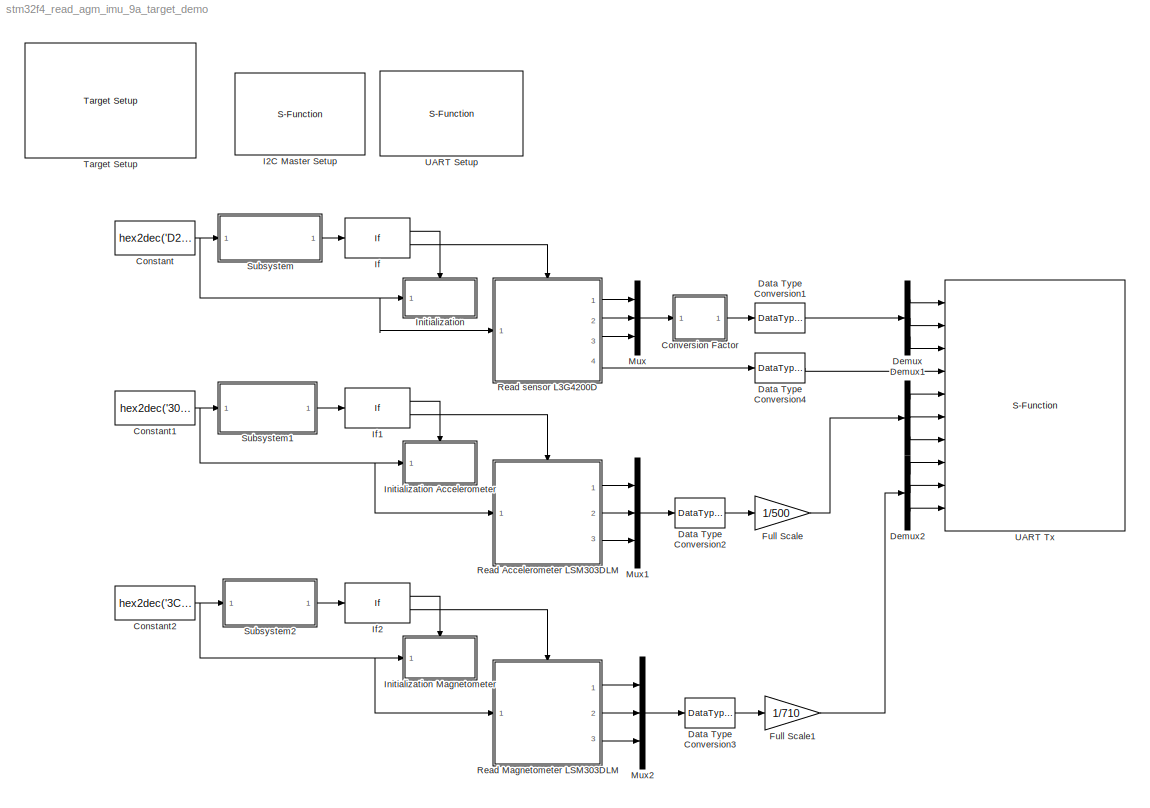
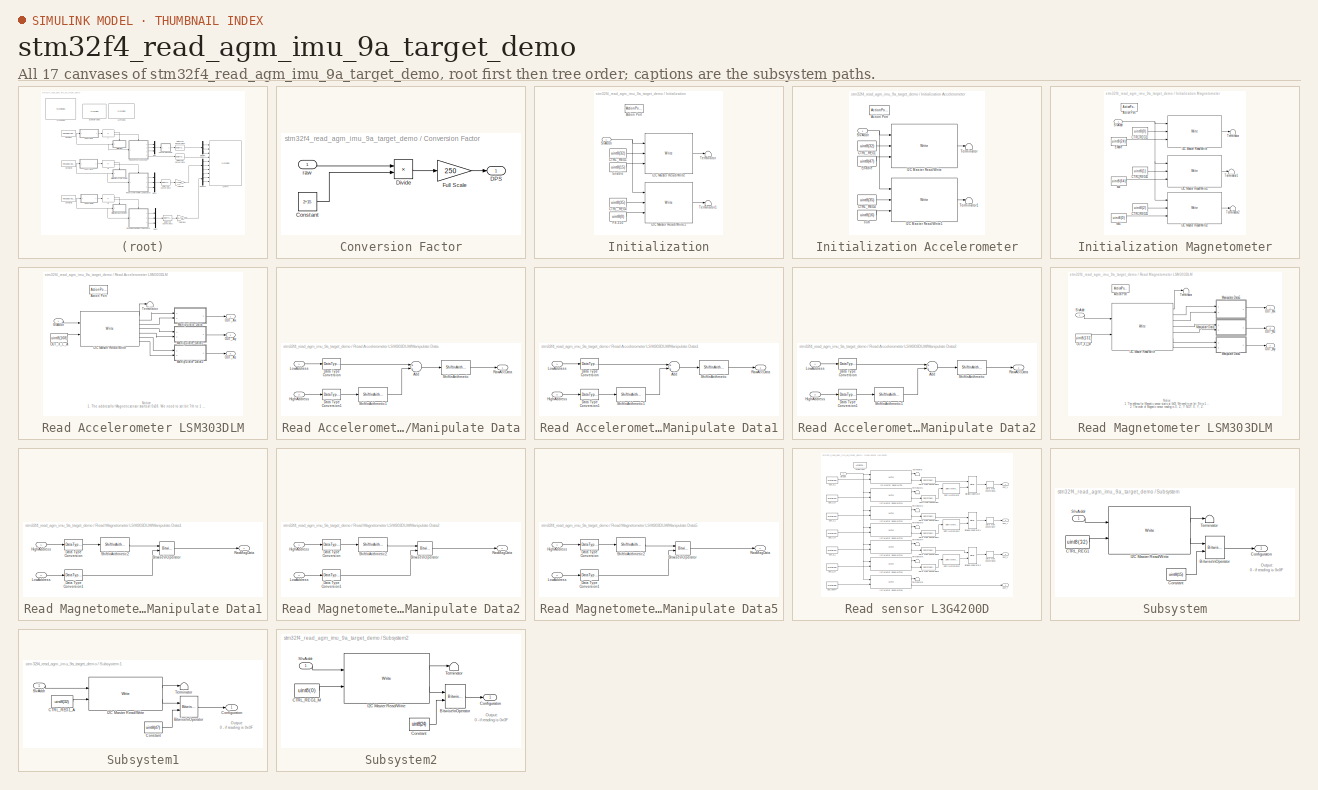
[diagram: thumbnail index - all 17 canvases of the model, root first then tree order]
MODEL stm32f4_read_agm_imu_9a_target_demo
KIND model
CONFIG PreLoadFcn = waijung.modelPreload; % Required for working with Waijung Blockset. Do not remove.
BLOCK [Constant] Constant
  OutDataType = fixdt(1, 16)
  OutDataTypeMode = uint8
  OutDataTypeStr = uint8
  OutScaling = 2^0
  Value = hex2dec('D2')
BLOCK [Constant] Constant1
  OutDataType = fixdt(1, 16)
  OutDataTypeMode = uint8
  OutDataTypeStr = uint8
  OutScaling = 2^0
  Value = hex2dec('30')
BLOCK [Constant] Constant2
  OutDataType = fixdt(1, 16)
  OutDataTypeMode = uint8
  OutDataTypeStr = uint8
  OutScaling = 2^0
  Value = hex2dec('3C')
BLOCK [SubSystem] Conversion Factor
  FunctionWithSeparateData = off
  MaskHideContents = off
  MinAlgLoopOccurrences = off
  Opaque = off
  Ports = [1, 1]
  PropExecContextOutsideSubsystem = off
  RTWSystemCode = Auto
  RequestExecContextInheritance = off
BLOCK [Constant] Conversion Factor/Constant
  OutDataType = fixdt(1, 16)
  OutScaling = 2^0
  Value = 2^15
BLOCK [Outport] Conversion Factor/DPS
  IconDisplay = Port number
BLOCK [Product] Conversion Factor/Divide
  InputSameDT = off
  Inputs = */
  OutDataType = fixdt(1, 16)
  OutDataTypeMode = Inherit via internal rule
  OutDataTypeStr = Inherit: Inherit via internal rule
  OutScaling = 2^-10
  Ports = [2, 1]
  RndMeth = Floor
  SaturateOnIntegerOverflow = off
BLOCK [Gain] Conversion Factor/Full Scale
  Gain = 250
  OutDataType = fixdt(1, 16)
  OutDataTypeMode = Inherit via internal rule
  OutDataTypeStr = Inherit: Inherit via internal rule
  OutScaling = 2^0
  ParamDataTypeStr = Inherit: Inherit via internal rule
  ParameterDataType = fixdt(1, 16)
  ParameterDataTypeMode = Inherit via internal rule
  ParameterScaling = 2^0
  SaturateOnIntegerOverflow = off
BLOCK [Inport] Conversion Factor/raw
  IconDisplay = Port number
BLOCK [DataTypeConversion] Data Type Conversion1
  OutDataType = fixdt(1, 16)
  OutDataTypeMode = single
  OutDataTypeStr = single
  OutScaling = 2^0
  RndMeth = Floor
  SaturateOnIntegerOverflow = off
BLOCK [DataTypeConversion] Data Type Conversion2
  OutDataType = fixdt(1, 16)
  OutDataTypeMode = single
  OutDataTypeStr = single
  OutScaling = 2^0
  RndMeth = Floor
  SaturateOnIntegerOverflow = off
BLOCK [DataTypeConversion] Data Type Conversion3
  OutDataType = fixdt(1, 16)
  OutDataTypeMode = single
  OutDataTypeStr = single
  OutScaling = 2^0
  RndMeth = Floor
  SaturateOnIntegerOverflow = off
BLOCK [DataTypeConversion] Data Type Conversion4
  OutDataType = fixdt(1, 16)
  OutDataTypeMode = single
  OutDataTypeStr = single
  OutScaling = 2^0
  RndMeth = Floor
  SaturateOnIntegerOverflow = off
BLOCK [Demux] Demux
  DisplayOption = bar
  Outputs = 3
  Ports = [1, 3]
BLOCK [Demux] Demux1
  DisplayOption = bar
  Outputs = 3
  Ports = [1, 3]
BLOCK [Demux] Demux2
  DisplayOption = bar
  Outputs = 3
  Ports = [1, 3]
BLOCK [Gain] Full Scale
  Gain = 1/500
  OutDataType = fixdt(1, 16)
  OutDataTypeMode = Inherit via internal rule
  OutDataTypeStr = Inherit: Inherit via internal rule
  OutScaling = 2^0
  ParamDataTypeStr = Inherit: Inherit via internal rule
  ParameterDataType = fixdt(1, 16)
  ParameterDataTypeMode = Inherit via internal rule
  ParameterScaling = 2^0
  SaturateOnIntegerOverflow = off
BLOCK [Gain] Full Scale1
  Gain = 1/710
  OutDataType = fixdt(1, 16)
  OutDataTypeMode = Inherit via internal rule
  OutDataTypeStr = Inherit: Inherit via internal rule
  OutScaling = 2^0
  ParamDataTypeStr = Inherit: Inherit via internal rule
  ParameterDataType = fixdt(1, 16)
  ParameterDataTypeMode = Inherit via internal rule
  ParameterScaling = 2^0
  SaturateOnIntegerOverflow = off
BLOCK [S-Function] I2C Master Setup
  EnableBusSupport = off
  FunctionName = stm32f4_i2c
  MaskCallbackString = stm32f4_i2c_callback('configuration');|stm32f4_i2c_callback('module');|||stm32f4_i2c_callback('dutycycle');|||stm32f4_i2c_callback('writecount');|stm32f4_i2c_callback('readcount');|stm32f4_i2c_callback('sdapin');|stm32f4_i2c_callback('sclpin');||||stm32f4_i2c_callback('confstr');|stm32f4_i2c_callback('sampletime');|stm32f4_i2c_callback('sampletimestr');|stm32f4_i2c_callback('blockid');
  MaskDisplay = text(0.5, 0.5, 'Module: I2C1\\nClock: 100kHz\\nSDA/SCL Pin: B7/B6','ver','middle','hor','center');
  MaskEnableString = off,on,off,off,on,on,on,on,on,on,on,on,off,off,off,on,on,on
  MaskHelp = web(fullfile(waijungdocroot,'stm32f4_i2c_setup.htm'), '-browser')
  MaskIconFrame = on
  MaskIconOpaque = on
  MaskIconRotate = none
  MaskIconUnits = normalized
  MaskInitialization = stm32f4_i2c_callback('init');
  MaskPortRotate = default
  MaskPromptString = Configuration|I2C Module|Last module|Transfer mode|Duty cycle in fast mode|Clock speed (kHz)|Timeout (ms)|Bytes write count|Bytes read count|SDA pin|SCL pin|Wait write time (ms), default is 0|Input type array|Output type array|Configuration string|Sample time (sec)|Compiled sample time (sec) in string|BlockID
  MaskSelfModifiable = on
  MaskStyleString = popup(Setup|Transaction),popup(1|2|3),edit,popup(Blocking|Non-blocking),popup(TLow/THigh = 16/9|TLow/THigh = 2),edit,edit,edit,edit,popup(Not used|B7|B9),popup(Not used|B6|B8),edit,edit,edit,edit,edit,edit,edit
  MaskTabNameString = ,,,,,,,,,,,,,,,,,
  MaskToolTipString = on,on,on,on,on,on,on,on,on,on,on,on,on,on,on,on,on,on
  MaskTunableValueString = off,off,off,off,off,off,off,off,off,off,off,off,off,off,off,off,off,off
  MaskType = stm32f4_i2c
  MaskValueString = Setup|1|1|Blocking|TLow/THigh = 2|100|25|0|0|B7|B6|0|[0]|[0]|[\"B\",\"7\",\"B\",\"6\",\"1\",\"1\",\"6\",\"0\",\"I2C_DutyCycle_2\",\"0\",\"off\"]|-1|0.01|I2CMasterSetup
  MaskVarAliasString = ,,,,,,,,,,,,,,,,,
  MaskVariables = configuration=&1;module=&2;lastmodule=&3;transfer=&4;dutycycle=&5;clkspeed=@6;timeout=@7;writecount=@8;readcount=@9;sdapin=&10;sclpin=&11;waitwritetime=@12;inputtypearray=@13;outputtypearray=@14;confstr=&15;sampletime=@16;sampletimestr=&17;blockid=&18;
  MaskVisibilityString = off,on,off,on,on,on,on,off,off,on,on,off,off,off,off,off,off,off
  Parameters = configuration,module,transfer,clkspeed,timeout,sdapin,sclpin,writecount,readcount,inputtypearray,outputtypearray,confstr,sampletime,sampletimestr,blockid
  Ports = []
BLOCK [If] If
  Ports = [1, 2]
BLOCK [If] If1
  Ports = [1, 2]
BLOCK [If] If2
  IfExpression = u1 >0
  Ports = [1, 2]
BLOCK [SubSystem] Initialization
  FunctionWithSeparateData = off
  MaskHideContents = off
  MinAlgLoopOccurrences = off
  Opaque = off
  Ports = [1, 0, 0, 0, 0, 0, 0, 1]
  PropExecContextOutsideSubsystem = off
  RTWSystemCode = Auto
  RequestExecContextInheritance = off
BLOCK [SubSystem] Initialization Accelerometer
  FunctionWithSeparateData = off
  MaskHideContents = off
  MinAlgLoopOccurrences = off
  Opaque = off
  Ports = [1, 0, 0, 0, 0, 0, 0, 1]
  PropExecContextOutsideSubsystem = off
  RTWSystemCode = Auto
  RequestExecContextInheritance = off
BLOCK [ActionPort] Initialization Accelerometer/Action Port
  ActionType = then
BLOCK [Constant] Initialization Accelerometer/CTRL_REG1
  OutDataType = fixdt(1, 16)
  OutScaling = 2^0
  Value = uint8(32)
BLOCK [Constant] Initialization Accelerometer/CTRL_REG4
  OutDataType = fixdt(1, 16)
  OutScaling = 2^0
  Value = uint8(35)
BLOCK [Constant] Initialization Accelerometer/Enable
  OutDataType = fixdt(1, 16)
  OutScaling = 2^0
  Value = uint8(47)
BLOCK [Reference] Initialization Accelerometer/I2C Master Read//Write  REF=stm32f4_i2c_lib/I2C Master Read//Write
  Ports = [3, 1]
  SourceBlock = stm32f4_i2c_lib/I2C Master Read//Write
  SourceType = stm32f4_i2c
  blockid = InitializationAccelerometerI2CMasterReadWrite
  clkspeed = 400
  configuration = Transaction
  confstr = [\"C\",\"9\",\"A\",\"8\",\"1\",\"1\",\"6\",\"0\",\"I2C_DutyCycle_2\",\"0\",\"off\"]
  dutycycle = TLow/THigh = 2
  forcestop = off
  inputtypearray = [3 3 3 3]
  lastmodule = 3
  module = 1
  outputtypearray = [1 3]
  readcount = 0
  sampletime = -1
  sampletimestr = 0.01
  sclpin = A8
  sdapin = C9
  timeout = 25
  transfer = Blocking
  waitwritetime = 0
  writecount = 2
BLOCK [Reference] Initialization Accelerometer/I2C Master Read//Write1  REF=stm32f4_i2c_lib/I2C Master Read//Write
  Ports = [3, 1]
  SourceBlock = stm32f4_i2c_lib/I2C Master Read//Write
  SourceType = stm32f4_i2c
  blockid = InitializationAccelerometerI2CMasterReadWrite1
  clkspeed = 400
  configuration = Transaction
  confstr = [\"C\",\"9\",\"A\",\"8\",\"1\",\"1\",\"6\",\"0\",\"I2C_DutyCycle_2\",\"0\",\"off\"]
  dutycycle = TLow/THigh = 2
  forcestop = off
  inputtypearray = [3 3 3 3]
  lastmodule = 3
  module = 1
  outputtypearray = [1 3]
  readcount = 0
  sampletime = -1
  sampletimestr = 0.01
  sclpin = A8
  sdapin = C9
  timeout = 25
  transfer = Blocking
  waitwritetime = 0
  writecount = 2
BLOCK [Inport] Initialization Accelerometer/SlvAddr
  IconDisplay = Port number
  OutDataType = fixdt(1, 16)
  OutScaling = 2^0
BLOCK [Terminator] Initialization Accelerometer/Terminator
BLOCK [Terminator] Initialization Accelerometer/Terminator1
BLOCK [Constant] Initialization Accelerometer/sub
  OutDataType = fixdt(1, 16)
  OutScaling = 2^0
  Value = uint8(16)
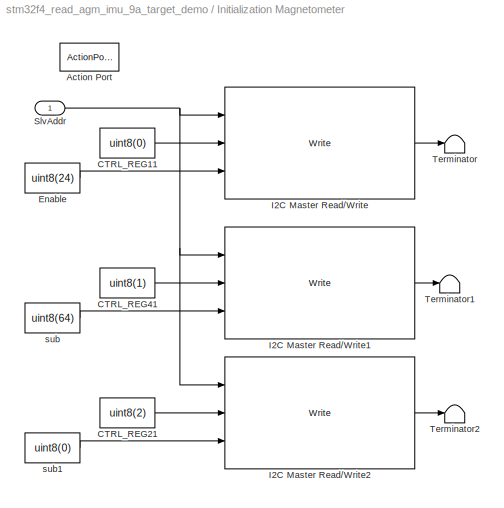
BLOCK [SubSystem] Initialization Magnetometer
  FunctionWithSeparateData = off
  MaskHideContents = off
  MinAlgLoopOccurrences = off
  Opaque = off
  Ports = [1, 0, 0, 0, 0, 0, 0, 1]
  PropExecContextOutsideSubsystem = off
  RTWSystemCode = Auto
  RequestExecContextInheritance = off
BLOCK [ActionPort] Initialization Magnetometer/Action Port
  ActionType = then
BLOCK [Constant] Initialization Magnetometer/CTRL_REG11
  OutDataType = fixdt(1, 16)
  OutScaling = 2^0
  Value = uint8(0)
BLOCK [Constant] Initialization Magnetometer/CTRL_REG21
  OutDataType = fixdt(1, 16)
  OutScaling = 2^0
  Value = uint8(2)
BLOCK [Constant] Initialization Magnetometer/CTRL_REG41
  OutDataType = fixdt(1, 16)
  OutScaling = 2^0
  Value = uint8(1)
BLOCK [Constant] Initialization Magnetometer/Enable
  OutDataType = fixdt(1, 16)
  OutScaling = 2^0
  Value = uint8(24)
BLOCK [Reference] Initialization Magnetometer/I2C Master Read//Write  REF=stm32f4_i2c_lib/I2C Master Read//Write
  Ports = [3, 1]
  SourceBlock = stm32f4_i2c_lib/I2C Master Read//Write
  SourceType = stm32f4_i2c
  blockid = InitializationMagnetometerI2CMasterReadWrite
  clkspeed = 400
  configuration = Transaction
  confstr = [\"C\",\"9\",\"A\",\"8\",\"1\",\"1\",\"6\",\"0\",\"I2C_DutyCycle_2\",\"0\",\"off\"]
  dutycycle = TLow/THigh = 2
  forcestop = off
  inputtypearray = [3 3 3 3]
  lastmodule = 3
  module = 1
  outputtypearray = [1 3]
  readcount = 0
  sampletime = -1
  sampletimestr = 0.01
  sclpin = A8
  sdapin = C9
  timeout = 25
  transfer = Blocking
  waitwritetime = 0
  writecount = 2
BLOCK [Reference] Initialization Magnetometer/I2C Master Read//Write1  REF=stm32f4_i2c_lib/I2C Master Read//Write
  Ports = [3, 1]
  SourceBlock = stm32f4_i2c_lib/I2C Master Read//Write
  SourceType = stm32f4_i2c
  blockid = InitializationMagnetometerI2CMasterReadWrite1
  clkspeed = 400
  configuration = Transaction
  confstr = [\"C\",\"9\",\"A\",\"8\",\"1\",\"1\",\"6\",\"0\",\"I2C_DutyCycle_2\",\"0\",\"off\"]
  dutycycle = TLow/THigh = 2
  forcestop = off
  inputtypearray = [3 3 3 3]
  lastmodule = 3
  module = 1
  outputtypearray = [1 3]
  readcount = 0
  sampletime = -1
  sampletimestr = 0.01
  sclpin = A8
  sdapin = C9
  timeout = 25
  transfer = Blocking
  waitwritetime = 0
  writecount = 2
BLOCK [Reference] Initialization Magnetometer/I2C Master Read//Write2  REF=stm32f4_i2c_lib/I2C Master Read//Write
  Ports = [3, 1]
  SourceBlock = stm32f4_i2c_lib/I2C Master Read//Write
  SourceType = stm32f4_i2c
  blockid = InitializationMagnetometerI2CMasterReadWrite2
  clkspeed = 400
  configuration = Transaction
  confstr = [\"C\",\"9\",\"A\",\"8\",\"1\",\"1\",\"6\",\"0\",\"I2C_DutyCycle_2\",\"0\",\"off\"]
  dutycycle = TLow/THigh = 2
  forcestop = off
  inputtypearray = [3 3 3 3]
  lastmodule = 3
  module = 1
  outputtypearray = [1 3]
  readcount = 0
  sampletime = -1
  sampletimestr = 0.01
  sclpin = A8
  sdapin = C9
  timeout = 25
  transfer = Blocking
  waitwritetime = 0
  writecount = 2
BLOCK [Inport] Initialization Magnetometer/SlvAddr
  IconDisplay = Port number
  OutDataType = fixdt(1, 16)
  OutScaling = 2^0
BLOCK [Terminator] Initialization Magnetometer/Terminator
BLOCK [Terminator] Initialization Magnetometer/Terminator1
BLOCK [Terminator] Initialization Magnetometer/Terminator2
BLOCK [Constant] Initialization Magnetometer/sub
  OutDataType = fixdt(1, 16)
  OutScaling = 2^0
  Value = uint8(64)
BLOCK [Constant] Initialization Magnetometer/sub1
  OutDataType = fixdt(1, 16)
  OutScaling = 2^0
  Value = uint8(0)
BLOCK [ActionPort] Initialization/Action Port
  ActionType = then
BLOCK [Constant] Initialization/CTRL_REG1
  OutDataType = fixdt(1, 16)
  OutScaling = 2^0
  Value = uint8(32)
BLOCK [Constant] Initialization/CTRL_REG4
  OutDataType = fixdt(1, 16)
  OutScaling = 2^0
  Value = uint8(35)
BLOCK [Constant] Initialization/Enable
  OutDataType = fixdt(1, 16)
  OutScaling = 2^0
  Value = uint8(15)
BLOCK [Constant] Initialization/FS 250
  OutDataType = fixdt(1, 16)
  OutScaling = 2^0
  Value = uint8(0)
BLOCK [Reference] Initialization/I2C Master Read//Write  REF=stm32f4_i2c_lib/I2C Master Read//Write
  Ports = [3, 1]
  SourceBlock = stm32f4_i2c_lib/I2C Master Read//Write
  SourceType = stm32f4_i2c
  blockid = InitializationI2CMasterReadWrite
  clkspeed = 400
  configuration = Transaction
  confstr = [\"C\",\"9\",\"A\",\"8\",\"1\",\"1\",\"6\",\"0\",\"I2C_DutyCycle_2\",\"0\",\"off\"]
  dutycycle = TLow/THigh = 2
  forcestop = off
  inputtypearray = [3 3 3 3]
  lastmodule = 3
  module = 1
  outputtypearray = [1 3]
  readcount = 0
  sampletime = -1
  sampletimestr = 0.01
  sclpin = A8
  sdapin = C9
  timeout = 25
  transfer = Blocking
  waitwritetime = 0
  writecount = 2
BLOCK [Reference] Initialization/I2C Master Read//Write1  REF=stm32f4_i2c_lib/I2C Master Read//Write
  Ports = [3, 1]
  SourceBlock = stm32f4_i2c_lib/I2C Master Read//Write
  SourceType = stm32f4_i2c
  blockid = InitializationI2CMasterReadWrite1
  clkspeed = 400
  configuration = Transaction
  confstr = [\"C\",\"9\",\"A\",\"8\",\"1\",\"1\",\"6\",\"0\",\"I2C_DutyCycle_2\",\"0\",\"off\"]
  dutycycle = TLow/THigh = 2
  forcestop = off
  inputtypearray = [3 3 3 3]
  lastmodule = 3
  module = 1
  outputtypearray = [1 3]
  readcount = 0
  sampletime = -1
  sampletimestr = 0.01
  sclpin = A8
  sdapin = C9
  timeout = 25
  transfer = Blocking
  waitwritetime = 0
  writecount = 2
BLOCK [Inport] Initialization/SlvAddr
  IconDisplay = Port number
  OutDataType = fixdt(1, 16)
  OutScaling = 2^0
BLOCK [Terminator] Initialization/Terminator
BLOCK [Terminator] Initialization/Terminator1
BLOCK [Mux] Mux
  DisplayOption = bar
  Inputs = 3
  Ports = [3, 1]
BLOCK [Mux] Mux1
  DisplayOption = bar
  Inputs = 3
  Ports = [3, 1]
BLOCK [Mux] Mux2
  DisplayOption = bar
  Inputs = 3
  Ports = [3, 1]
BLOCK [SubSystem] Read Accelerometer LSM303DLM
  FunctionWithSeparateData = off
  MaskHideContents = off
  MinAlgLoopOccurrences = off
  Opaque = off
  Ports = [1, 3, 0, 0, 0, 0, 0, 1]
  PropExecContextOutsideSubsystem = off
  RTWSystemCode = Auto
  RequestExecContextInheritance = off
  TreatAsAtomicUnit = on
BLOCK [ActionPort] Read Accelerometer LSM303DLM/Action Port
  ActionType = else
BLOCK [Reference] Read Accelerometer LSM303DLM/I2C Master Read//Write  REF=stm32f4_i2c_lib/I2C Master Read//Write
  Ports = [2, 7]
  SourceBlock = stm32f4_i2c_lib/I2C Master Read//Write
  SourceType = stm32f4_i2c
  blockid = ReadAccelerometerLSM303DLMI2CMasterReadWrite
  clkspeed = 400
  configuration = Transaction
  confstr = [\"C\",\"9\",\"A\",\"8\",\"1\",\"1\",\"6\",\"0\",\"I2C_DutyCycle_2\",\"0\",\"off\"]
  dutycycle = TLow/THigh = 2
  forcestop = off
  inputtypearray = [2 3 3]
  lastmodule = 3
  module = 1
  outputtypearray = [7 3 3 3 3 3 3 3]
  readcount = 6
  sampletime = -1
  sampletimestr = 0.01
  sclpin = A8
  sdapin = C9
  timeout = 25
  transfer = Blocking
  waitwritetime = 0
  writecount = 1
BLOCK [SubSystem] Read Accelerometer LSM303DLM/Manipulate Data
  FunctionWithSeparateData = off
  MaskHideContents = off
  MinAlgLoopOccurrences = off
  Opaque = off
  Ports = [2, 1]
  PropExecContextOutsideSubsystem = off
  RTWSystemCode = Auto
  RequestExecContextInheritance = off
BLOCK [Sum] Read Accelerometer LSM303DLM/Manipulate Data/Add
  InputSameDT = off
  OutDataType = fixdt(1, 16)
  OutDataTypeMode = Inherit via internal rule
  OutDataTypeStr = Inherit: Inherit via internal rule
  OutScaling = 2^-10
  Ports = [2, 1]
  SaturateOnIntegerOverflow = off
BLOCK [DataTypeConversion] Read Accelerometer LSM303DLM/Manipulate Data/Data Type Conversion
  OutDataType = fixdt(1, 16)
  OutDataTypeMode = int16
  OutDataTypeStr = int16
  OutScaling = 2^0
  RndMeth = Floor
  SaturateOnIntegerOverflow = off
BLOCK [DataTypeConversion] Read Accelerometer LSM303DLM/Manipulate Data/Data Type Conversion1
  OutDataType = fixdt(1, 16)
  OutDataTypeMode = int16
  OutDataTypeStr = int16
  OutScaling = 2^0
  RndMeth = Floor
  SaturateOnIntegerOverflow = off
BLOCK [Inport] Read Accelerometer LSM303DLM/Manipulate Data/HighAddress
  IconDisplay = Port number
  OutDataType = fixdt(1, 16)
  OutScaling = 2^0
  Port = 2
BLOCK [Inport] Read Accelerometer LSM303DLM/Manipulate Data/LowAddress
  IconDisplay = Port number
  OutDataType = fixdt(1, 16)
  OutScaling = 2^0
BLOCK [Outport] Read Accelerometer LSM303DLM/Manipulate Data/RawAccData
  IconDisplay = Port number
  OutDataType = fixdt(1, 16)
  OutScaling = 2^0
BLOCK [Reference] Read Accelerometer LSM303DLM/Manipulate Data/Shift\nArithmetic  REF=simulink/Logic and Bit\nOperations/Shift\nArithmetic
  FunctionWithSeparateData = off
  Ports = [1, 1]
  RTWMemSecDataConstants = Inherit from model
  RTWMemSecDataInternal = Inherit from model
  RTWMemSecDataParameters = Inherit from model
  RTWMemSecFuncExecute = Inherit from model
  RTWMemSecFuncInitTerm = Inherit from model
  ShowPortLabels = FromPortIcon
  SourceBlock = simulink/Logic and Bit\nOperations/Shift\nArithmetic
  SourceType = Shift Arithmetic
  SystemSampleTime = -1
  nBinPtShiftRight = 0
  nBitShiftRight = 4
BLOCK [Reference] Read Accelerometer LSM303DLM/Manipulate Data/Shift\nArithmetic1  REF=simulink/Logic and Bit\nOperations/Shift\nArithmetic
  FunctionWithSeparateData = off
  Ports = [1, 1]
  RTWMemSecDataConstants = Inherit from model
  RTWMemSecDataInternal = Inherit from model
  RTWMemSecDataParameters = Inherit from model
  RTWMemSecFuncExecute = Inherit from model
  RTWMemSecFuncInitTerm = Inherit from model
  ShowPortLabels = FromPortIcon
  SourceBlock = simulink/Logic and Bit\nOperations/Shift\nArithmetic
  SourceType = Shift Arithmetic
  SystemSampleTime = -1
  nBinPtShiftRight = 0
  nBitShiftRight = -8
BLOCK [SubSystem] Read Accelerometer LSM303DLM/Manipulate Data1
  FunctionWithSeparateData = off
  MaskHideContents = off
  MinAlgLoopOccurrences = off
  Opaque = off
  Ports = [2, 1]
  PropExecContextOutsideSubsystem = off
  RTWSystemCode = Auto
  RequestExecContextInheritance = off
BLOCK [Sum] Read Accelerometer LSM303DLM/Manipulate Data1/Add
  InputSameDT = off
  OutDataType = fixdt(1, 16)
  OutDataTypeMode = Inherit via internal rule
  OutDataTypeStr = Inherit: Inherit via internal rule
  OutScaling = 2^-10
  Ports = [2, 1]
  SaturateOnIntegerOverflow = off
BLOCK [DataTypeConversion] Read Accelerometer LSM303DLM/Manipulate Data1/Data Type Conversion
  OutDataType = fixdt(1, 16)
  OutDataTypeMode = int16
  OutDataTypeStr = int16
  OutScaling = 2^0
  RndMeth = Floor
  SaturateOnIntegerOverflow = off
BLOCK [DataTypeConversion] Read Accelerometer LSM303DLM/Manipulate Data1/Data Type Conversion1
  OutDataType = fixdt(1, 16)
  OutDataTypeMode = int16
  OutDataTypeStr = int16
  OutScaling = 2^0
  RndMeth = Floor
  SaturateOnIntegerOverflow = off
BLOCK [Inport] Read Accelerometer LSM303DLM/Manipulate Data1/HighAddress
  IconDisplay = Port number
  OutDataType = fixdt(1, 16)
  OutScaling = 2^0
  Port = 2
BLOCK [Inport] Read Accelerometer LSM303DLM/Manipulate Data1/LowAddress
  IconDisplay = Port number
  OutDataType = fixdt(1, 16)
  OutScaling = 2^0
BLOCK [Outport] Read Accelerometer LSM303DLM/Manipulate Data1/RawAccData
  IconDisplay = Port number
  OutDataType = fixdt(1, 16)
  OutScaling = 2^0
BLOCK [Reference] Read Accelerometer LSM303DLM/Manipulate Data1/Shift\nArithmetic  REF=simulink/Logic and Bit\nOperations/Shift\nArithmetic
  FunctionWithSeparateData = off
  Ports = [1, 1]
  RTWMemSecDataConstants = Inherit from model
  RTWMemSecDataInternal = Inherit from model
  RTWMemSecDataParameters = Inherit from model
  RTWMemSecFuncExecute = Inherit from model
  RTWMemSecFuncInitTerm = Inherit from model
  ShowPortLabels = FromPortIcon
  SourceBlock = simulink/Logic and Bit\nOperations/Shift\nArithmetic
  SourceType = Shift Arithmetic
  SystemSampleTime = -1
  nBinPtShiftRight = 0
  nBitShiftRight = 4
BLOCK [Reference] Read Accelerometer LSM303DLM/Manipulate Data1/Shift\nArithmetic1  REF=simulink/Logic and Bit\nOperations/Shift\nArithmetic
  FunctionWithSeparateData = off
  Ports = [1, 1]
  RTWMemSecDataConstants = Inherit from model
  RTWMemSecDataInternal = Inherit from model
  RTWMemSecDataParameters = Inherit from model
  RTWMemSecFuncExecute = Inherit from model
  RTWMemSecFuncInitTerm = Inherit from model
  ShowPortLabels = FromPortIcon
  SourceBlock = simulink/Logic and Bit\nOperations/Shift\nArithmetic
  SourceType = Shift Arithmetic
  SystemSampleTime = -1
  nBinPtShiftRight = 0
  nBitShiftRight = -8
BLOCK [SubSystem] Read Accelerometer LSM303DLM/Manipulate Data2
  FunctionWithSeparateData = off
  MaskHideContents = off
  MinAlgLoopOccurrences = off
  Opaque = off
  Ports = [2, 1]
  PropExecContextOutsideSubsystem = off
  RTWSystemCode = Auto
  RequestExecContextInheritance = off
BLOCK [Sum] Read Accelerometer LSM303DLM/Manipulate Data2/Add
  InputSameDT = off
  OutDataType = fixdt(1, 16)
  OutDataTypeMode = Inherit via internal rule
  OutDataTypeStr = Inherit: Inherit via internal rule
  OutScaling = 2^-10
  Ports = [2, 1]
  SaturateOnIntegerOverflow = off
BLOCK [DataTypeConversion] Read Accelerometer LSM303DLM/Manipulate Data2/Data Type Conversion
  OutDataType = fixdt(1, 16)
  OutDataTypeMode = int16
  OutDataTypeStr = int16
  OutScaling = 2^0
  RndMeth = Floor
  SaturateOnIntegerOverflow = off
BLOCK [DataTypeConversion] Read Accelerometer LSM303DLM/Manipulate Data2/Data Type Conversion1
  OutDataType = fixdt(1, 16)
  OutDataTypeMode = int16
  OutDataTypeStr = int16
  OutScaling = 2^0
  RndMeth = Floor
  SaturateOnIntegerOverflow = off
BLOCK [Inport] Read Accelerometer LSM303DLM/Manipulate Data2/HighAddress
  IconDisplay = Port number
  OutDataType = fixdt(1, 16)
  OutScaling = 2^0
  Port = 2
BLOCK [Inport] Read Accelerometer LSM303DLM/Manipulate Data2/LowAddress
  IconDisplay = Port number
  OutDataType = fixdt(1, 16)
  OutScaling = 2^0
BLOCK [Outport] Read Accelerometer LSM303DLM/Manipulate Data2/RawAccData
  IconDisplay = Port number
  OutDataType = fixdt(1, 16)
  OutScaling = 2^0
BLOCK [Reference] Read Accelerometer LSM303DLM/Manipulate Data2/Shift\nArithmetic  REF=simulink/Logic and Bit\nOperations/Shift\nArithmetic
  FunctionWithSeparateData = off
  Ports = [1, 1]
  RTWMemSecDataConstants = Inherit from model
  RTWMemSecDataInternal = Inherit from model
  RTWMemSecDataParameters = Inherit from model
  RTWMemSecFuncExecute = Inherit from model
  RTWMemSecFuncInitTerm = Inherit from model
  ShowPortLabels = FromPortIcon
  SourceBlock = simulink/Logic and Bit\nOperations/Shift\nArithmetic
  SourceType = Shift Arithmetic
  SystemSampleTime = -1
  nBinPtShiftRight = 0
  nBitShiftRight = 4
BLOCK [Reference] Read Accelerometer LSM303DLM/Manipulate Data2/Shift\nArithmetic1  REF=simulink/Logic and Bit\nOperations/Shift\nArithmetic
  FunctionWithSeparateData = off
  Ports = [1, 1]
  RTWMemSecDataConstants = Inherit from model
  RTWMemSecDataInternal = Inherit from model
  RTWMemSecDataParameters = Inherit from model
  RTWMemSecFuncExecute = Inherit from model
  RTWMemSecFuncInitTerm = Inherit from model
  ShowPortLabels = FromPortIcon
  SourceBlock = simulink/Logic and Bit\nOperations/Shift\nArithmetic
  SourceType = Shift Arithmetic
  SystemSampleTime = -1
  nBinPtShiftRight = 0
  nBitShiftRight = -8
BLOCK [Outport] Read Accelerometer LSM303DLM/OUT_Ax
  IconDisplay = Port number
  OutDataType = fixdt(1, 16)
  OutScaling = 2^0
BLOCK [Outport] Read Accelerometer LSM303DLM/OUT_Ay
  IconDisplay = Port number
  OutDataType = fixdt(1, 16)
  OutScaling = 2^0
  Port = 2
BLOCK [Outport] Read Accelerometer LSM303DLM/OUT_Az
  IconDisplay = Port number
  OutDataType = fixdt(1, 16)
  OutScaling = 2^0
  Port = 3
BLOCK [Constant] Read Accelerometer LSM303DLM/OUT_X_L_A
  OutDataType = fixdt(1, 16)
  OutScaling = 2^0
  Value = uint8(168)
BLOCK [Inport] Read Accelerometer LSM303DLM/SlvAddr
  IconDisplay = Port number
  OutDataType = fixdt(1, 16)
  OutScaling = 2^0
BLOCK [Terminator] Read Accelerometer LSM303DLM/Terminator
BLOCK [SubSystem] Read Magnetometer LSM303DLM
  FunctionWithSeparateData = off
  MaskHideContents = off
  MinAlgLoopOccurrences = off
  Opaque = off
  Ports = [1, 3, 0, 0, 0, 0, 0, 1]
  PropExecContextOutsideSubsystem = off
  RTWSystemCode = Auto
  RequestExecContextInheritance = off
  TreatAsAtomicUnit = on
BLOCK [ActionPort] Read Magnetometer LSM303DLM/Action Port
  ActionType = else
BLOCK [Reference] Read Magnetometer LSM303DLM/I2C Master Read//Write  REF=stm32f4_i2c_lib/I2C Master Read//Write
  Ports = [2, 7]
  SourceBlock = stm32f4_i2c_lib/I2C Master Read//Write
  SourceType = stm32f4_i2c
  blockid = ReadMagnetometerLSM303DLMI2CMasterReadWrite
  clkspeed = 400
  configuration = Transaction
  confstr = [\"C\",\"9\",\"A\",\"8\",\"1\",\"1\",\"6\",\"0\",\"I2C_DutyCycle_2\",\"0\",\"off\"]
  dutycycle = TLow/THigh = 2
  forcestop = off
  inputtypearray = [2 3 3]
  lastmodule = 3
  module = 1
  outputtypearray = [7 3 3 3 3 3 3 3]
  readcount = 6
  sampletime = -1
  sampletimestr = 0.01
  sclpin = A8
  sdapin = C9
  timeout = 25
  transfer = Blocking
  waitwritetime = 0
  writecount = 1
BLOCK [SubSystem] Read Magnetometer LSM303DLM/Manipulate Data1
  FunctionWithSeparateData = off
  MaskHideContents = off
  MinAlgLoopOccurrences = off
  Opaque = off
  Ports = [2, 1]
  PropExecContextOutsideSubsystem = off
  RTWSystemCode = Auto
  RequestExecContextInheritance = off
BLOCK [Reference] Read Magnetometer LSM303DLM/Manipulate Data1/Bitwise\nOperator  REF=simulink/Logic and Bit\nOperations/Bitwise\nOperator
  BitMask = bin2dec('11011001')
  BitMaskRealWorld = Stored Integer
  NumInputPorts = 2
  Ports = [2, 1]
  SourceBlock = simulink/Logic and Bit\nOperations/Bitwise\nOperator
  SourceType = Bitwise Operator
  UseBitMask = off
  logicop = OR
BLOCK [DataTypeConversion] Read Magnetometer LSM303DLM/Manipulate Data1/Data Type Conversion
  OutDataType = fixdt(1, 16)
  OutDataTypeMode = int16
  OutDataTypeStr = int16
  OutScaling = 2^0
  RndMeth = Floor
  SaturateOnIntegerOverflow = off
BLOCK [DataTypeConversion] Read Magnetometer LSM303DLM/Manipulate Data1/Data Type Conversion1
  OutDataType = fixdt(1, 16)
  OutDataTypeMode = int16
  OutDataTypeStr = int16
  OutScaling = 2^0
  RndMeth = Floor
  SaturateOnIntegerOverflow = off
BLOCK [Inport] Read Magnetometer LSM303DLM/Manipulate Data1/HighAddress
  IconDisplay = Port number
  OutDataType = fixdt(1, 16)
  OutScaling = 2^0
BLOCK [Inport] Read Magnetometer LSM303DLM/Manipulate Data1/LowAddress
  IconDisplay = Port number
  OutDataType = fixdt(1, 16)
  OutScaling = 2^0
  Port = 2
BLOCK [Outport] Read Magnetometer LSM303DLM/Manipulate Data1/RawMagData
  IconDisplay = Port number
  OutDataType = fixdt(1, 16)
  OutScaling = 2^0
BLOCK [Reference] Read Magnetometer LSM303DLM/Manipulate Data1/Shift\nArithmetic2  REF=simulink/Logic and Bit\nOperations/Shift\nArithmetic
  FunctionWithSeparateData = off
  Ports = [1, 1]
  RTWMemSecDataConstants = Inherit from model
  RTWMemSecDataInternal = Inherit from model
  RTWMemSecDataParameters = Inherit from model
  RTWMemSecFuncExecute = Inherit from model
  RTWMemSecFuncInitTerm = Inherit from model
  ShowPortLabels = FromPortIcon
  SourceBlock = simulink/Logic and Bit\nOperations/Shift\nArithmetic
  SourceType = Shift Arithmetic
  SystemSampleTime = -1
  nBinPtShiftRight = 0
  nBitShiftRight = -8
BLOCK [SubSystem] Read Magnetometer LSM303DLM/Manipulate Data2
  FunctionWithSeparateData = off
  MaskHideContents = off
  MinAlgLoopOccurrences = off
  Opaque = off
  Ports = [2, 1]
  PropExecContextOutsideSubsystem = off
  RTWSystemCode = Auto
  RequestExecContextInheritance = off
BLOCK [Reference] Read Magnetometer LSM303DLM/Manipulate Data2/Bitwise\nOperator  REF=simulink/Logic and Bit\nOperations/Bitwise\nOperator
  BitMask = bin2dec('11011001')
  BitMaskRealWorld = Stored Integer
  NumInputPorts = 2
  Ports = [2, 1]
  SourceBlock = simulink/Logic and Bit\nOperations/Bitwise\nOperator
  SourceType = Bitwise Operator
  UseBitMask = off
  logicop = OR
BLOCK [DataTypeConversion] Read Magnetometer LSM303DLM/Manipulate Data2/Data Type Conversion
  OutDataType = fixdt(1, 16)
  OutDataTypeMode = int16
  OutDataTypeStr = int16
  OutScaling = 2^0
  RndMeth = Floor
  SaturateOnIntegerOverflow = off
BLOCK [DataTypeConversion] Read Magnetometer LSM303DLM/Manipulate Data2/Data Type Conversion1
  OutDataType = fixdt(1, 16)
  OutDataTypeMode = int16
  OutDataTypeStr = int16
  OutScaling = 2^0
  RndMeth = Floor
  SaturateOnIntegerOverflow = off
BLOCK [Inport] Read Magnetometer LSM303DLM/Manipulate Data2/HighAddress
  IconDisplay = Port number
  OutDataType = fixdt(1, 16)
  OutScaling = 2^0
BLOCK [Inport] Read Magnetometer LSM303DLM/Manipulate Data2/LowAddress
  IconDisplay = Port number
  OutDataType = fixdt(1, 16)
  OutScaling = 2^0
  Port = 2
BLOCK [Outport] Read Magnetometer LSM303DLM/Manipulate Data2/RawMagData
  IconDisplay = Port number
  OutDataType = fixdt(1, 16)
  OutScaling = 2^0
BLOCK [Reference] Read Magnetometer LSM303DLM/Manipulate Data2/Shift\nArithmetic2  REF=simulink/Logic and Bit\nOperations/Shift\nArithmetic
  FunctionWithSeparateData = off
  Ports = [1, 1]
  RTWMemSecDataConstants = Inherit from model
  RTWMemSecDataInternal = Inherit from model
  RTWMemSecDataParameters = Inherit from model
  RTWMemSecFuncExecute = Inherit from model
  RTWMemSecFuncInitTerm = Inherit from model
  ShowPortLabels = FromPortIcon
  SourceBlock = simulink/Logic and Bit\nOperations/Shift\nArithmetic
  SourceType = Shift Arithmetic
  SystemSampleTime = -1
  nBinPtShiftRight = 0
  nBitShiftRight = -8
BLOCK [SubSystem] Read Magnetometer LSM303DLM/Manipulate Data5
  FunctionWithSeparateData = off
  MaskHideContents = off
  MinAlgLoopOccurrences = off
  Opaque = off
  Ports = [2, 1]
  PropExecContextOutsideSubsystem = off
  RTWSystemCode = Auto
  RequestExecContextInheritance = off
BLOCK [Reference] Read Magnetometer LSM303DLM/Manipulate Data5/Bitwise\nOperator  REF=simulink/Logic and Bit\nOperations/Bitwise\nOperator
  BitMask = bin2dec('11011001')
  BitMaskRealWorld = Stored Integer
  NumInputPorts = 2
  Ports = [2, 1]
  SourceBlock = simulink/Logic and Bit\nOperations/Bitwise\nOperator
  SourceType = Bitwise Operator
  UseBitMask = off
  logicop = OR
BLOCK [DataTypeConversion] Read Magnetometer LSM303DLM/Manipulate Data5/Data Type Conversion
  OutDataType = fixdt(1, 16)
  OutDataTypeMode = int16
  OutDataTypeStr = int16
  OutScaling = 2^0
  RndMeth = Floor
  SaturateOnIntegerOverflow = off
BLOCK [DataTypeConversion] Read Magnetometer LSM303DLM/Manipulate Data5/Data Type Conversion1
  OutDataType = fixdt(1, 16)
  OutDataTypeMode = int16
  OutDataTypeStr = int16
  OutScaling = 2^0
  RndMeth = Floor
  SaturateOnIntegerOverflow = off
BLOCK [Inport] Read Magnetometer LSM303DLM/Manipulate Data5/HighAddress
  IconDisplay = Port number
  OutDataType = fixdt(1, 16)
  OutScaling = 2^0
BLOCK [Inport] Read Magnetometer LSM303DLM/Manipulate Data5/LowAddress
  IconDisplay = Port number
  OutDataType = fixdt(1, 16)
  OutScaling = 2^0
  Port = 2
BLOCK [Outport] Read Magnetometer LSM303DLM/Manipulate Data5/RawMagData
  IconDisplay = Port number
  OutDataType = fixdt(1, 16)
  OutScaling = 2^0
BLOCK [Reference] Read Magnetometer LSM303DLM/Manipulate Data5/Shift\nArithmetic2  REF=simulink/Logic and Bit\nOperations/Shift\nArithmetic
  FunctionWithSeparateData = off
  Ports = [1, 1]
  RTWMemSecDataConstants = Inherit from model
  RTWMemSecDataInternal = Inherit from model
  RTWMemSecDataParameters = Inherit from model
  RTWMemSecFuncExecute = Inherit from model
  RTWMemSecFuncInitTerm = Inherit from model
  ShowPortLabels = FromPortIcon
  SourceBlock = simulink/Logic and Bit\nOperations/Shift\nArithmetic
  SourceType = Shift Arithmetic
  SystemSampleTime = -1
  nBinPtShiftRight = 0
  nBitShiftRight = -8
BLOCK [Outport] Read Magnetometer LSM303DLM/OUT_Mx
  IconDisplay = Port number
  OutDataType = fixdt(1, 16)
  OutScaling = 2^0
BLOCK [Outport] Read Magnetometer LSM303DLM/OUT_My
  IconDisplay = Port number
  OutDataType = fixdt(1, 16)
  OutScaling = 2^0
  Port = 2
BLOCK [Outport] Read Magnetometer LSM303DLM/OUT_Mz
  IconDisplay = Port number
  OutDataType = fixdt(1, 16)
  OutScaling = 2^0
  Port = 3
BLOCK [Constant] Read Magnetometer LSM303DLM/OUT_X_L_M
  OutDataType = fixdt(1, 16)
  OutScaling = 2^0
  Value = uint8(131)
BLOCK [Inport] Read Magnetometer LSM303DLM/SlvAddr
  IconDisplay = Port number
  OutDataType = fixdt(1, 16)
  OutScaling = 2^0
BLOCK [Terminator] Read Magnetometer LSM303DLM/Terminator
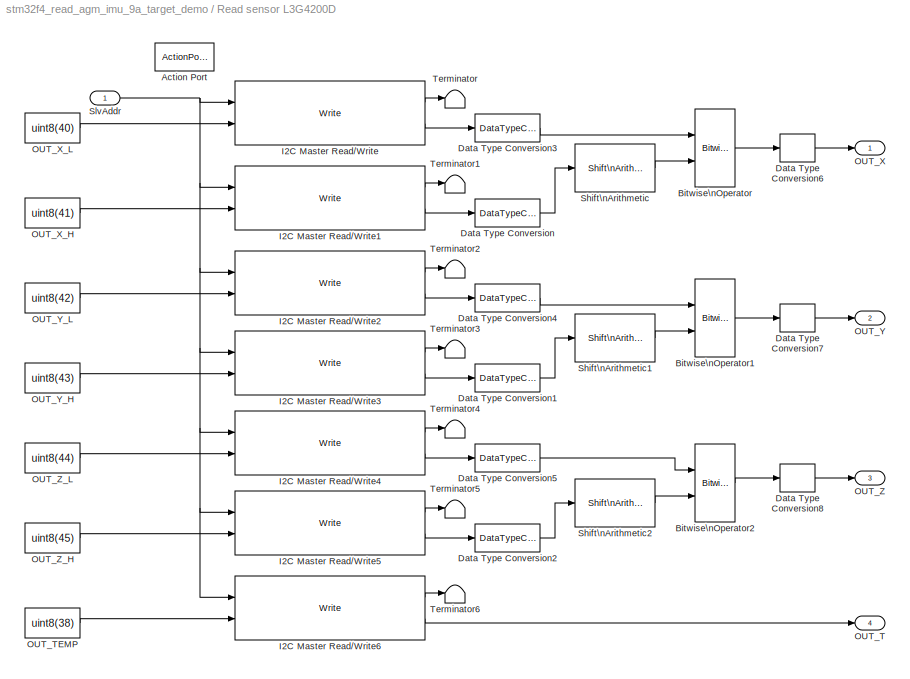
BLOCK [SubSystem] Read sensor L3G4200D
  FunctionWithSeparateData = off
  MaskHideContents = off
  MinAlgLoopOccurrences = off
  Opaque = off
  Ports = [1, 4, 0, 0, 0, 0, 0, 1]
  PropExecContextOutsideSubsystem = off
  RTWSystemCode = Auto
  RequestExecContextInheritance = off
  TreatAsAtomicUnit = on
BLOCK [ActionPort] Read sensor L3G4200D/Action Port
  ActionType = else
BLOCK [Reference] Read sensor L3G4200D/Bitwise\nOperator  REF=simulink/Logic and Bit\nOperations/Bitwise\nOperator
  BitMask = bin2dec('11011001')
  BitMaskRealWorld = Stored Integer
  NumInputPorts = 2
  Ports = [2, 1]
  SourceBlock = simulink/Logic and Bit\nOperations/Bitwise\nOperator
  SourceType = Bitwise Operator
  UseBitMask = off
  logicop = OR
BLOCK [Reference] Read sensor L3G4200D/Bitwise\nOperator1  REF=simulink/Logic and Bit\nOperations/Bitwise\nOperator
  BitMask = bin2dec('11011001')
  BitMaskRealWorld = Stored Integer
  NumInputPorts = 2
  Ports = [2, 1]
  SourceBlock = simulink/Logic and Bit\nOperations/Bitwise\nOperator
  SourceType = Bitwise Operator
  UseBitMask = off
  logicop = OR
BLOCK [Reference] Read sensor L3G4200D/Bitwise\nOperator2  REF=simulink/Logic and Bit\nOperations/Bitwise\nOperator
  BitMask = bin2dec('11011001')
  BitMaskRealWorld = Stored Integer
  NumInputPorts = 2
  Ports = [2, 1]
  SourceBlock = simulink/Logic and Bit\nOperations/Bitwise\nOperator
  SourceType = Bitwise Operator
  UseBitMask = off
  logicop = OR
BLOCK [DataTypeConversion] Read sensor L3G4200D/Data Type Conversion
  OutDataType = fixdt(1, 16)
  OutDataTypeMode = uint16
  OutDataTypeStr = uint16
  OutScaling = 2^0
  RndMeth = Floor
  SaturateOnIntegerOverflow = off
BLOCK [DataTypeConversion] Read sensor L3G4200D/Data Type Conversion1
  OutDataType = fixdt(1, 16)
  OutDataTypeMode = uint16
  OutDataTypeStr = uint16
  OutScaling = 2^0
  RndMeth = Floor
  SaturateOnIntegerOverflow = off
BLOCK [DataTypeConversion] Read sensor L3G4200D/Data Type Conversion2
  OutDataType = fixdt(1, 16)
  OutDataTypeMode = uint16
  OutDataTypeStr = uint16
  OutScaling = 2^0
  RndMeth = Floor
  SaturateOnIntegerOverflow = off
BLOCK [DataTypeConversion] Read sensor L3G4200D/Data Type Conversion3
  OutDataType = fixdt(1, 16)
  OutDataTypeMode = uint16
  OutDataTypeStr = uint16
  OutScaling = 2^0
  RndMeth = Floor
  SaturateOnIntegerOverflow = off
BLOCK [DataTypeConversion] Read sensor L3G4200D/Data Type Conversion4
  OutDataType = fixdt(1, 16)
  OutDataTypeMode = uint16
  OutDataTypeStr = uint16
  OutScaling = 2^0
  RndMeth = Floor
  SaturateOnIntegerOverflow = off
BLOCK [DataTypeConversion] Read sensor L3G4200D/Data Type Conversion5
  OutDataType = fixdt(1, 16)
  OutDataTypeMode = uint16
  OutDataTypeStr = uint16
  OutScaling = 2^0
  RndMeth = Floor
  SaturateOnIntegerOverflow = off
BLOCK [DataTypeConversion] Read sensor L3G4200D/Data Type Conversion6
  OutDataType = fixdt(1, 16)
  OutDataTypeMode = int16
  OutDataTypeStr = int16
  OutScaling = 2^0
  RndMeth = Floor
  SaturateOnIntegerOverflow = off
BLOCK [DataTypeConversion] Read sensor L3G4200D/Data Type Conversion7
  OutDataType = fixdt(1, 16)
  OutDataTypeMode = int16
  OutDataTypeStr = int16
  OutScaling = 2^0
  RndMeth = Floor
  SaturateOnIntegerOverflow = off
BLOCK [DataTypeConversion] Read sensor L3G4200D/Data Type Conversion8
  OutDataType = fixdt(1, 16)
  OutDataTypeMode = int16
  OutDataTypeStr = int16
  OutScaling = 2^0
  RndMeth = Floor
  SaturateOnIntegerOverflow = off
BLOCK [Reference] Read sensor L3G4200D/I2C Master Read//Write  REF=stm32f4_i2c_lib/I2C Master Read//Write
  Ports = [2, 2]
  SourceBlock = stm32f4_i2c_lib/I2C Master Read//Write
  SourceType = stm32f4_i2c
  blockid = ReadsensorL3G4200DI2CMasterReadWrite
  clkspeed = 400
  configuration = Transaction
  confstr = [\"C\",\"9\",\"A\",\"8\",\"1\",\"1\",\"6\",\"0\",\"I2C_DutyCycle_2\",\"0\",\"off\"]
  dutycycle = TLow/THigh = 2
  forcestop = off
  inputtypearray = [2 3 3]
  lastmodule = 3
  module = 1
  outputtypearray = [2 3 3]
  readcount = 1
  sampletime = -1
  sampletimestr = 0.01
  sclpin = A8
  sdapin = C9
  timeout = 25
  transfer = Blocking
  waitwritetime = 0
  writecount = 1
BLOCK [Reference] Read sensor L3G4200D/I2C Master Read//Write1  REF=stm32f4_i2c_lib/I2C Master Read//Write
  Ports = [2, 2]
  SourceBlock = stm32f4_i2c_lib/I2C Master Read//Write
  SourceType = stm32f4_i2c
  blockid = ReadsensorL3G4200DI2CMasterReadWrite1
  clkspeed = 400
  configuration = Transaction
  confstr = [\"C\",\"9\",\"A\",\"8\",\"1\",\"1\",\"6\",\"0\",\"I2C_DutyCycle_2\",\"0\",\"off\"]
  dutycycle = TLow/THigh = 2
  forcestop = off
  inputtypearray = [2 3 3]
  lastmodule = 3
  module = 1
  outputtypearray = [2 3 3]
  readcount = 1
  sampletime = -1
  sampletimestr = 0.01
  sclpin = A8
  sdapin = C9
  timeout = 25
  transfer = Blocking
  waitwritetime = 0
  writecount = 1
BLOCK [Reference] Read sensor L3G4200D/I2C Master Read//Write2  REF=stm32f4_i2c_lib/I2C Master Read//Write
  Ports = [2, 2]
  SourceBlock = stm32f4_i2c_lib/I2C Master Read//Write
  SourceType = stm32f4_i2c
  blockid = ReadsensorL3G4200DI2CMasterReadWrite2
  clkspeed = 400
  configuration = Transaction
  confstr = [\"C\",\"9\",\"A\",\"8\",\"1\",\"1\",\"6\",\"0\",\"I2C_DutyCycle_2\",\"0\",\"off\"]
  dutycycle = TLow/THigh = 2
  forcestop = off
  inputtypearray = [2 3 3]
  lastmodule = 3
  module = 1
  outputtypearray = [2 3 3]
  readcount = 1
  sampletime = -1
  sampletimestr = 0.01
  sclpin = A8
  sdapin = C9
  timeout = 25
  transfer = Blocking
  waitwritetime = 0
  writecount = 1
BLOCK [Reference] Read sensor L3G4200D/I2C Master Read//Write3  REF=stm32f4_i2c_lib/I2C Master Read//Write
  Ports = [2, 2]
  SourceBlock = stm32f4_i2c_lib/I2C Master Read//Write
  SourceType = stm32f4_i2c
  blockid = ReadsensorL3G4200DI2CMasterReadWrite3
  clkspeed = 400
  configuration = Transaction
  confstr = [\"C\",\"9\",\"A\",\"8\",\"1\",\"1\",\"6\",\"0\",\"I2C_DutyCycle_2\",\"0\",\"off\"]
  dutycycle = TLow/THigh = 2
  forcestop = off
  inputtypearray = [2 3 3]
  lastmodule = 3
  module = 1
  outputtypearray = [2 3 3]
  readcount = 1
  sampletime = -1
  sampletimestr = 0.01
  sclpin = A8
  sdapin = C9
  timeout = 25
  transfer = Blocking
  waitwritetime = 0
  writecount = 1
BLOCK [Reference] Read sensor L3G4200D/I2C Master Read//Write4  REF=stm32f4_i2c_lib/I2C Master Read//Write
  Ports = [2, 2]
  SourceBlock = stm32f4_i2c_lib/I2C Master Read//Write
  SourceType = stm32f4_i2c
  blockid = ReadsensorL3G4200DI2CMasterReadWrite4
  clkspeed = 400
  configuration = Transaction
  confstr = [\"C\",\"9\",\"A\",\"8\",\"1\",\"1\",\"6\",\"0\",\"I2C_DutyCycle_2\",\"0\",\"off\"]
  dutycycle = TLow/THigh = 2
  forcestop = off
  inputtypearray = [2 3 3]
  lastmodule = 3
  module = 1
  outputtypearray = [2 3 3]
  readcount = 1
  sampletime = -1
  sampletimestr = 0.01
  sclpin = A8
  sdapin = C9
  timeout = 25
  transfer = Blocking
  waitwritetime = 0
  writecount = 1
BLOCK [Reference] Read sensor L3G4200D/I2C Master Read//Write5  REF=stm32f4_i2c_lib/I2C Master Read//Write
  Ports = [2, 2]
  SourceBlock = stm32f4_i2c_lib/I2C Master Read//Write
  SourceType = stm32f4_i2c
  blockid = ReadsensorL3G4200DI2CMasterReadWrite5
  clkspeed = 400
  configuration = Transaction
  confstr = [\"C\",\"9\",\"A\",\"8\",\"1\",\"1\",\"6\",\"0\",\"I2C_DutyCycle_2\",\"0\",\"off\"]
  dutycycle = TLow/THigh = 2
  forcestop = off
  inputtypearray = [2 3 3]
  lastmodule = 3
  module = 1
  outputtypearray = [2 3 3]
  readcount = 1
  sampletime = -1
  sampletimestr = 0.01
  sclpin = A8
  sdapin = C9
  timeout = 25
  transfer = Blocking
  waitwritetime = 0
  writecount = 1
BLOCK [Reference] Read sensor L3G4200D/I2C Master Read//Write6  REF=stm32f4_i2c_lib/I2C Master Read//Write
  Ports = [2, 2]
  SourceBlock = stm32f4_i2c_lib/I2C Master Read//Write
  SourceType = stm32f4_i2c
  blockid = ReadsensorL3G4200DI2CMasterReadWrite6
  clkspeed = 400
  configuration = Transaction
  confstr = [\"C\",\"9\",\"A\",\"8\",\"1\",\"1\",\"6\",\"0\",\"I2C_DutyCycle_2\",\"0\",\"off\"]
  dutycycle = TLow/THigh = 2
  forcestop = off
  inputtypearray = [2 3 3]
  lastmodule = 3
  module = 1
  outputtypearray = [2 3 3]
  readcount = 1
  sampletime = -1
  sampletimestr = 0.01
  sclpin = A8
  sdapin = C9
  timeout = 25
  transfer = Blocking
  waitwritetime = 0
  writecount = 1
BLOCK [Outport] Read sensor L3G4200D/OUT_T
  IconDisplay = Port number
  OutDataType = fixdt(1, 16)
  OutScaling = 2^0
  Port = 4
BLOCK [Constant] Read sensor L3G4200D/OUT_TEMP
  OutDataType = fixdt(1, 16)
  OutScaling = 2^0
  Value = uint8(38)
BLOCK [Outport] Read sensor L3G4200D/OUT_X
  IconDisplay = Port number
  OutDataType = fixdt(1, 16)
  OutScaling = 2^0
BLOCK [Constant] Read sensor L3G4200D/OUT_X_H
  OutDataType = fixdt(1, 16)
  OutScaling = 2^0
  Value = uint8(41)
BLOCK [Constant] Read sensor L3G4200D/OUT_X_L
  OutDataType = fixdt(1, 16)
  OutScaling = 2^0
  Value = uint8(40)
BLOCK [Outport] Read sensor L3G4200D/OUT_Y
  IconDisplay = Port number
  OutDataType = fixdt(1, 16)
  OutScaling = 2^0
  Port = 2
BLOCK [Constant] Read sensor L3G4200D/OUT_Y_H
  OutDataType = fixdt(1, 16)
  OutScaling = 2^0
  Value = uint8(43)
BLOCK [Constant] Read sensor L3G4200D/OUT_Y_L
  OutDataType = fixdt(1, 16)
  OutScaling = 2^0
  Value = uint8(42)
BLOCK [Outport] Read sensor L3G4200D/OUT_Z
  IconDisplay = Port number
  OutDataType = fixdt(1, 16)
  OutScaling = 2^0
  Port = 3
BLOCK [Constant] Read sensor L3G4200D/OUT_Z_H
  OutDataType = fixdt(1, 16)
  OutScaling = 2^0
  Value = uint8(45)
BLOCK [Constant] Read sensor L3G4200D/OUT_Z_L
  OutDataType = fixdt(1, 16)
  OutScaling = 2^0
  Value = uint8(44)
BLOCK [Reference] Read sensor L3G4200D/Shift\nArithmetic  REF=simulink/Logic and Bit\nOperations/Shift\nArithmetic
  FunctionWithSeparateData = off
  Ports = [1, 1]
  RTWMemSecDataConstants = Inherit from model
  RTWMemSecDataInternal = Inherit from model
  RTWMemSecDataParameters = Inherit from model
  RTWMemSecFuncExecute = Inherit from model
  RTWMemSecFuncInitTerm = Inherit from model
  ShowPortLabels = FromPortIcon
  SourceBlock = simulink/Logic and Bit\nOperations/Shift\nArithmetic
  SourceType = Shift Arithmetic
  SystemSampleTime = -1
  nBinPtShiftRight = 0
  nBitShiftRight = -8
BLOCK [Reference] Read sensor L3G4200D/Shift\nArithmetic1  REF=simulink/Logic and Bit\nOperations/Shift\nArithmetic
  FunctionWithSeparateData = off
  Ports = [1, 1]
  RTWMemSecDataConstants = Inherit from model
  RTWMemSecDataInternal = Inherit from model
  RTWMemSecDataParameters = Inherit from model
  RTWMemSecFuncExecute = Inherit from model
  RTWMemSecFuncInitTerm = Inherit from model
  ShowPortLabels = FromPortIcon
  SourceBlock = simulink/Logic and Bit\nOperations/Shift\nArithmetic
  SourceType = Shift Arithmetic
  SystemSampleTime = -1
  nBinPtShiftRight = 0
  nBitShiftRight = -8
BLOCK [Reference] Read sensor L3G4200D/Shift\nArithmetic2  REF=simulink/Logic and Bit\nOperations/Shift\nArithmetic
  FunctionWithSeparateData = off
  Ports = [1, 1]
  RTWMemSecDataConstants = Inherit from model
  RTWMemSecDataInternal = Inherit from model
  RTWMemSecDataParameters = Inherit from model
  RTWMemSecFuncExecute = Inherit from model
  RTWMemSecFuncInitTerm = Inherit from model
  ShowPortLabels = FromPortIcon
  SourceBlock = simulink/Logic and Bit\nOperations/Shift\nArithmetic
  SourceType = Shift Arithmetic
  SystemSampleTime = -1
  nBinPtShiftRight = 0
  nBitShiftRight = -8
BLOCK [Inport] Read sensor L3G4200D/SlvAddr
  IconDisplay = Port number
  OutDataType = fixdt(1, 16)
  OutScaling = 2^0
BLOCK [Terminator] Read sensor L3G4200D/Terminator
BLOCK [Terminator] Read sensor L3G4200D/Terminator1
BLOCK [Terminator] Read sensor L3G4200D/Terminator2
BLOCK [Terminator] Read sensor L3G4200D/Terminator3
BLOCK [Terminator] Read sensor L3G4200D/Terminator4
BLOCK [Terminator] Read sensor L3G4200D/Terminator5
BLOCK [Terminator] Read sensor L3G4200D/Terminator6
BLOCK [SubSystem] Subsystem
  FunctionWithSeparateData = off
  MaskHideContents = off
  MinAlgLoopOccurrences = off
  Opaque = off
  Ports = [1, 1]
  PropExecContextOutsideSubsystem = off
  RTWSystemCode = Auto
  RequestExecContextInheritance = off
BLOCK [Reference] Subsystem/Bitwise\nOperator  REF=simulink/Logic and Bit\nOperations/Bitwise\nOperator
  BitMask = bin2dec('11011001')
  BitMaskRealWorld = Stored Integer
  NumInputPorts = 2
  Ports = [2, 1]
  SourceBlock = simulink/Logic and Bit\nOperations/Bitwise\nOperator
  SourceType = Bitwise Operator
  UseBitMask = off
  logicop = XOR
BLOCK [Constant] Subsystem/CTRL_REG1
  OutDataType = fixdt(1, 16)
  OutScaling = 2^0
  Value = uint8(32)
BLOCK [Outport] Subsystem/Configuraton
  IconDisplay = Port number
  OutDataType = fixdt(1, 16)
  OutScaling = 2^0
BLOCK [Constant] Subsystem/Constant
  OutDataType = fixdt(1, 16)
  OutScaling = 2^0
  Value = uint8(15)
BLOCK [Reference] Subsystem/I2C Master Read//Write  REF=stm32f4_i2c_lib/I2C Master Read//Write
  Ports = [2, 2]
  SourceBlock = stm32f4_i2c_lib/I2C Master Read//Write
  SourceType = stm32f4_i2c
  blockid = SubsystemI2CMasterReadWrite
  clkspeed = 400
  configuration = Transaction
  confstr = [\"C\",\"9\",\"A\",\"8\",\"1\",\"1\",\"6\",\"0\",\"I2C_DutyCycle_2\",\"0\",\"off\"]
  dutycycle = TLow/THigh = 2
  forcestop = off
  inputtypearray = [2 3 3]
  lastmodule = 3
  module = 1
  outputtypearray = [2 3 3]
  readcount = 1
  sampletime = -1
  sampletimestr = 0.01
  sclpin = A8
  sdapin = C9
  timeout = 25
  transfer = Blocking
  waitwritetime = 0
  writecount = 1
BLOCK [Inport] Subsystem/SlvAddr
  IconDisplay = Port number
  OutDataType = fixdt(1, 16)
  OutScaling = 2^0
BLOCK [Terminator] Subsystem/Terminator
BLOCK [SubSystem] Subsystem1
  FunctionWithSeparateData = off
  MaskHideContents = off
  MinAlgLoopOccurrences = off
  Opaque = off
  Ports = [1, 1]
  PropExecContextOutsideSubsystem = off
  RTWSystemCode = Auto
  RequestExecContextInheritance = off
BLOCK [Reference] Subsystem1/Bitwise\nOperator  REF=simulink/Logic and Bit\nOperations/Bitwise\nOperator
  BitMask = bin2dec('11011001')
  BitMaskRealWorld = Stored Integer
  NumInputPorts = 2
  Ports = [2, 1]
  SourceBlock = simulink/Logic and Bit\nOperations/Bitwise\nOperator
  SourceType = Bitwise Operator
  UseBitMask = off
  logicop = XOR
BLOCK [Constant] Subsystem1/CTRL_REG1_A
  OutDataType = fixdt(1, 16)
  OutScaling = 2^0
  Value = uint8(32)
BLOCK [Outport] Subsystem1/Configuraton
  IconDisplay = Port number
  OutDataType = fixdt(1, 16)
  OutScaling = 2^0
BLOCK [Constant] Subsystem1/Constant
  OutDataType = fixdt(1, 16)
  OutScaling = 2^0
  Value = uint8(47)
BLOCK [Reference] Subsystem1/I2C Master Read//Write  REF=stm32f4_i2c_lib/I2C Master Read//Write
  Ports = [2, 2]
  SourceBlock = stm32f4_i2c_lib/I2C Master Read//Write
  SourceType = stm32f4_i2c
  blockid = Subsystem1I2CMasterReadWrite
  clkspeed = 400
  configuration = Transaction
  confstr = [\"C\",\"9\",\"A\",\"8\",\"1\",\"1\",\"6\",\"0\",\"I2C_DutyCycle_2\",\"0\",\"off\"]
  dutycycle = TLow/THigh = 2
  forcestop = off
  inputtypearray = [2 3 3]
  lastmodule = 3
  module = 1
  outputtypearray = [2 3 3]
  readcount = 1
  sampletime = -1
  sampletimestr = 0.01
  sclpin = A8
  sdapin = C9
  timeout = 25
  transfer = Blocking
  waitwritetime = 0
  writecount = 1
BLOCK [Inport] Subsystem1/SlvAddr
  IconDisplay = Port number
  OutDataType = fixdt(1, 16)
  OutScaling = 2^0
BLOCK [Terminator] Subsystem1/Terminator
BLOCK [SubSystem] Subsystem2
  FunctionWithSeparateData = off
  MaskHideContents = off
  MinAlgLoopOccurrences = off
  Opaque = off
  Ports = [1, 1]
  PropExecContextOutsideSubsystem = off
  RTWSystemCode = Auto
  RequestExecContextInheritance = off
BLOCK [Reference] Subsystem2/Bitwise\nOperator  REF=simulink/Logic and Bit\nOperations/Bitwise\nOperator
  BitMask = bin2dec('11011001')
  BitMaskRealWorld = Stored Integer
  NumInputPorts = 2
  Ports = [2, 1]
  SourceBlock = simulink/Logic and Bit\nOperations/Bitwise\nOperator
  SourceType = Bitwise Operator
  UseBitMask = off
  logicop = XOR
BLOCK [Constant] Subsystem2/CTRL_REG1_M
  OutDataType = fixdt(1, 16)
  OutScaling = 2^0
  Value = uint8(0)
BLOCK [Outport] Subsystem2/Configuraton
  IconDisplay = Port number
  OutDataType = fixdt(1, 16)
  OutScaling = 2^0
BLOCK [Constant] Subsystem2/Constant
  OutDataType = fixdt(1, 16)
  OutScaling = 2^0
  Value = uint8(24)
BLOCK [Reference] Subsystem2/I2C Master Read//Write  REF=stm32f4_i2c_lib/I2C Master Read//Write
  Ports = [2, 2]
  SourceBlock = stm32f4_i2c_lib/I2C Master Read//Write
  SourceType = stm32f4_i2c
  blockid = Subsystem2I2CMasterReadWrite
  clkspeed = 400
  configuration = Transaction
  confstr = [\"C\",\"9\",\"A\",\"8\",\"1\",\"1\",\"6\",\"0\",\"I2C_DutyCycle_2\",\"0\",\"off\"]
  dutycycle = TLow/THigh = 2
  forcestop = off
  inputtypearray = [2 3 3]
  lastmodule = 3
  module = 1
  outputtypearray = [2 3 3]
  readcount = 1
  sampletime = -1
  sampletimestr = 0.01
  sclpin = A8
  sdapin = C9
  timeout = 25
  transfer = Blocking
  waitwritetime = 0
  writecount = 1
BLOCK [Inport] Subsystem2/SlvAddr
  IconDisplay = Port number
  OutDataType = fixdt(1, 16)
  OutScaling = 2^0
BLOCK [Terminator] Subsystem2/Terminator
BLOCK [Reference] Target Setup  REF=stm32f4_device_config_lib/Target Setup
  Ports = []
  Priority = 100
  SourceBlock = stm32f4_device_config_lib/Target Setup
  SourceType = stm32f4_target_setup
  assemblercontrolstr = $(patsubst %, -I%, .) -mcpu=cortex-m4 -mthumb -mthumb-interwork -mfloat-abi=hard -mfpu=fpv4-sp-d16 -ffast-math -Wall -Wextra -Ofast -Wa,-amhls=$(<:.s=.lst) -D__STACK_SIZE=$(STACK_SIZE) -D__HEAP_SIZE=$(HEAP_SIZE)
  blockid = TargetSetup
  clockconfig = HSEOSC-8MHz
  compiler = GNU ARM
  compilercontrolstr = $(patsubst %, -I%, .) -mcpu=cortex-m4 -mthumb -mthumb-interwork -mfloat-abi=hard -mfpu=fpv4-sp-d16 -ffast-math -Wall -Wextra -Ofast
  editctrlstr = on
  enableautocompiledownload = on
  execprofile = None
  flashlength = 1024k
  flashorigin = 0x8000000
  fullchiperase = off
  hclk = 168000000
  heapsize = 0x2000
  hseval = 8000000
  lastprofileruart = 3
  linkercontrolstr = -T$(LD_SCRIPT) -g -Wl,-Map=$(MAP),--cref,--no-warn-mismatch -mcpu=cortex-m4 -mthumb -mthumb-interwork -mfloat-abi=hard -mfpu=fpv4-sp-d16 -specs=nosys.specs
  manualsetsampletime = off
  mcu = STM32F417IG (LQFP176)
  mcustr = STM32F417IG
  previous_compiler = GNU ARM
  profilerbaud = 500000
  profilerinitstr = 0.01,168000000,1680000,500000,0
  profilertxpin = D8
  profileruart = 3
  programmerinterface = ST-Link
  ramlength = 128k
  ramorigin = 0x20000000
  runafterdownload = on
  sampletime = 0.01
  showmemoryconfiguration = off
  stacksize = 0x2000
  system_stm32f4xx_c_path = <path>
  systickreloadvalue = 1680000
  useextram = off
BLOCK [S-Function] UART Setup
  EnableBusSupport = off
  FunctionName = stm32f4_usart
  MaskCallbackString = stm32f4_usart_callback('configuration');|stm32f4_usart_callback('uartmodule');|stm32f4_usart_callback('baudrate');||||||stm32f4_usart_callback('flowcontrol');|||stm32f4_usart_callback('advanceoptions');|||stm32f4_usart_callback('transfer');|stm32f4_usart_callback('packetmode');|stm32f4_usart_callback('binheader');|stm32f4_usart_callback('binterminator');|stm32f4_usart_callback('porttype');|stm32f4...<+572ch>
  MaskDescription = Default STM32F4DISCOVERY + aMG F4 Connect 2 + aMG USB Converter N2 settings use\n\nUSART3, Tx D8, Rx D9 and USB Serial Converter A.
  MaskDisplay = text(0.5, 0.5, 'Module: USART3_Setup\\nBaud (Bps): 115200\\nDMA Buffer: 512/-\\nTx/Rx Pin: D8/-','ver','middle','hor','center');
  MaskEnableString = on,on,on,on,on,on,on,on,on,off,off,on,on,on,on,on,on,on,on,on,on,on,on,on,on,on,on,on,on,on,on,on,on,on,on,on,on,on,on,off,off,on,on
  MaskHelp = web(fullfile(waijungdocroot,'stm32f4_usart_setup.htm'), '-browser')
  MaskIconFrame = on
  MaskIconOpaque = on
  MaskIconRotate = none
  MaskIconUnits = normalized
  MaskInitialization = stm32f4_usart_callback('init');
  MaskPortRotate = default
  MaskPromptString = Configuration|UART Module|Baud rate (bps)|Data bits|Parity|Stop bit|Tx Pin|Rx Pin|Hardware flow control|HW Flow control, CTS Pin|HW Flow control, RTS Pin|Advance options|Rx buffer size (bytes)|Tx buffer size (bytes)|Transfer|Packet mode|Binary header (example: '7E 7E')|Binary terminator (example: '03 03')|Number of data port, type DOUBLE|Number of data port, type SINGLE|Number of data port, type I...<+457ch>
  MaskSelfModifiable = on
  MaskStyleString = popup(Setup|Tx|Rx),popup(1|2|3|4|5|6),edit,popup(8),popup(No|Odd|Even),popup(0.5|1|1.5|2),popup(Not used|B10|C10|D8),popup(Not used|B11|C11|D9),popup(None|RTS|CTS|RTS/CTS),popup(Not used|B13|D11),popup(Not used|B14|D12),checkbox,popup(16|32|64|128|256|512|1024|2048),popup(16|32|64|128|256|512|1024|2048),popup(Blocking|Non-Blocking),popup(Ascii|Binary|String Buffer),edit,edit,edit,edit,edit,edit,ed...<+261ch>
  MaskTabNameString = ,,,,,,,,,,,,,,,,,,,,,,,,,,,,,,,,,,,,,,,,,,
  MaskToolTipString = on,on,on,on,on,on,on,on,on,on,on,on,on,on,on,on,on,on,on,on,on,on,on,on,on,on,on,on,on,on,on,on,on,on,on,on,on,on,on,on,on,on,on
  MaskTunableValueString = off,off,off,off,off,off,off,off,off,off,off,off,off,off,off,off,off,off,off,off,off,off,off,off,off,off,off,off,off,off,off,off,off,off,off,off,off,off,off,off,off,off,off
  MaskType = stm32f4_usart
  MaskValueString = Setup|3|115200|8|No|1|D8|Not used|None|Not used|Not used|off|512|512|Blocking|Ascii|'7E 7E'|'03 03'|1|0|1|0|0|0|0|0|'%d,%f'|CRLF (0x0D 0x0A - \"<path>")|CR (0x0D - \"\\r\")|<empty>||[0]|[0]|[0]|[0]|0|''|[0]|-1|0.01|UARTSetup|[ \"dummy\", \"1\", \"D\", \"8\", \"0\", \"*\", \"*\", \"0\", \"*\", \"*\", \"0\", \"*\", \"*\", \"1\", \"4\", \"3\", \"1\", \"4\", \"1\", \"512\", \"512\", \"1\", \"3\", \"1...<+54ch>
  MaskVarAliasString = ,,,,,,,,,,,,,,,,,,,,,,,,,,,,,,,,,,,,,,,,,,
  MaskVariables = configuration=&1;uartmodule=&2;baudrate=@3;databits=@4;parity=&5;stopbit=&6;remaptxpin=&7;remaprxpin=&8;flowcontrol=&9;remapctspin=&10;remaprtspin=&11;advanceoptions=@12;rxbuffersize=@13;txbuffersize=@14;transfer=&15;packetmode=&16;binheader=&17;binterminator=&18;porttype_double=@19;porttype_single=@20;porttype_int8=@21;porttype_uint8=@22;porttype_int16=@23;porttype_uint16=@24;porttype_int32=@25;p...<+306ch>
  MaskVisibilityString = off,on,on,on,on,on,on,on,on,on,on,on,off,off,off,off,off,off,off,off,off,off,off,off,off,off,off,off,off,off,off,off,off,off,off,off,off,off,off,off,off,off,off
  Parameters = configuration,uartmodule,transfer,baudrate,inputtype,outputtype,confstr,binheaderarray,binterminatorarray,asciiheader,asciiterminator,bindatalength,packetmode,varname,sampletime,sampletimestr,blockid
  Ports = []
  Priority = 1
BLOCK [S-Function] UART Tx
  EnableBusSupport = off
  FunctionName = stm32f4_usart
  MaskCallbackString = stm32f4_usart_callback('configuration');|stm32f4_usart_callback('uartmodule');|stm32f4_usart_callback('baudrate');||||||stm32f4_usart_callback('flowcontrol');|||stm32f4_usart_callback('advanceoptions');|||stm32f4_usart_callback('transfer');|stm32f4_usart_callback('packetmode');|stm32f4_usart_callback('binheader');|stm32f4_usart_callback('binterminator');|stm32f4_usart_callback('porttype');|stm32f4...<+572ch>
  MaskDescription = Data type for Ascii format\n%u, %i, %d, %o, %x: uint32\n%e, %g, %f: single\n%c: int8
  MaskDisplay = text(0.95, 0.5, 'Module: USART3_Tx\\nPacket: Binary\\nTransfer: Blocking\\nTs (sec): 0.01','ver','middle','hor','right'); port_label('input', 1,'single'); port_label('input', 2,'single'); port_label('input', 3,'single'); port_label('input', 4,'single'); port_label('input', 5,'single'); port_label('input', 6,'single'); port_label('input', 7,'single'); port_label('input', 8,'single'); port_label('in...<+52ch>
  MaskEnableString = on,on,on,on,on,on,on,on,on,off,off,on,on,on,on,on,on,on,on,on,on,on,on,on,on,on,on,on,on,on,on,on,on,on,on,on,on,on,on,off,off,on,on
  MaskHelp = web(fullfile(waijungdocroot,'stm32f4_usart_tx.htm'), '-browser')
  MaskIconFrame = on
  MaskIconOpaque = on
  MaskIconRotate = none
  MaskIconUnits = normalized
  MaskInitialization = stm32f4_usart_callback('init');
  MaskPortRotate = default
  MaskPromptString = Configuration|UART Module|Baud rate (bps)|Data bits|Parity|Stop bit|Tx Pin|Rx Pin|Hardware flow control|HW Flow control, CTS Pin|HW Flow control, RTS Pin|Advance options|Rx buffer size (bytes)|Tx buffer size (bytes)|Transfer|Packet mode|Binary header (example: '7E 7E')|Binary terminator (example: '03 03')|Number of data port, type DOUBLE|Number of data port, type SINGLE|Number of data port, type I...<+457ch>
  MaskSelfModifiable = on
  MaskStyleString = popup(Setup|Tx|Rx),popup(1|2|3|4|5|6),edit,popup(8),popup(No|Odd|Even),popup(0.5|1|1.5|2),popup(Not used|A9|B6),popup(Not used|A10|B7),popup(None|RTS|CTS|RTS/CTS),popup(Not used|A11),popup(Not used|A12),checkbox,popup(16|32|64|128|256|512|1024|2048),popup(16|32|64|128|256|512|1024|2048),popup(Blocking|Non-Blocking),popup(Ascii|Binary|String Buffer),edit,edit,edit,edit,edit,edit,edit,edit,edit,edit...<+244ch>
  MaskTabNameString = ,,,,,,,,,,,,,,,,,,,,,,,,,,,,,,,,,,,,,,,,,,
  MaskToolTipString = on,on,on,on,on,on,on,on,on,on,on,on,on,on,on,on,on,on,on,on,on,on,on,on,on,on,on,on,on,on,on,on,on,on,on,on,on,on,on,on,on,on,on
  MaskTunableValueString = off,off,off,off,off,off,off,off,off,off,off,off,off,off,off,off,off,off,off,off,off,off,off,off,off,off,off,off,off,off,off,off,off,off,off,off,off,off,off,off,off,off,off
  MaskType = stm32f4_usart
  MaskValueString = Tx|3|115200|8|No|1|Not used|Not used|None|Not used|Not used|off|512|512|Blocking|Binary|'7E 7E'|'03 03'|0|10|0|0|0|0|0|0|'value=%d,%f'|CRLF (0x0D 0x0A - \"<path>")|CRLF (0x0D 0x0A - \"<path>")|<empty>||[10  1 1 1 1 1 1 1 1 1 1]|[0]|[2 126  126]|[2 3  3]|40|'value=%d,%f\\r\\n'|[2 13 10]|-1|0.01|UARTTx|[ \"dummy\", \"0\", \"*\", \"*\", \"0\", \"*\", \"*\", \"0\", \"*\", \"*\", \"0\", \"*\", \"*\",...<+132ch>
  MaskVarAliasString = ,,,,,,,,,,,,,,,,,,,,,,,,,,,,,,,,,,,,,,,,,,
  MaskVariables = configuration=&1;uartmodule=&2;baudrate=@3;databits=@4;parity=&5;stopbit=&6;remaptxpin=&7;remaprxpin=&8;flowcontrol=&9;remapctspin=&10;remaprtspin=&11;advanceoptions=@12;rxbuffersize=@13;txbuffersize=@14;transfer=&15;packetmode=&16;binheader=&17;binterminator=&18;porttype_double=@19;porttype_single=@20;porttype_int8=@21;porttype_uint8=@22;porttype_int16=@23;porttype_uint16=@24;porttype_int32=@25;p...<+306ch>
  MaskVisibilityString = off,on,off,off,off,off,off,off,off,off,off,off,off,off,on,on,on,on,on,on,on,on,on,on,on,on,off,off,off,off,off,off,off,off,off,off,off,off,on,off,off,off,off
  Parameters = configuration,uartmodule,transfer,baudrate,inputtype,outputtype,confstr,binheaderarray,binterminatorarray,asciiheader,asciiterminator,bindatalength,packetmode,varname,sampletime,sampletimestr,blockid
  Ports = [10]
  Priority = 1
ANNOTATION Read Accelerometer LSM303DLM: Notice\n1. The address for Magnetic sensor starts at 0x28. We need to set bit 7th to 1 for continuous read i.e. 128 + 40 = 168.
ANNOTATION Read Magnetometer LSM303DLM: Notice\n1. The address for Magnetic sensor starts at 0x03. We need to set bit 7th to 1 for continuous read i.e. 128 + 3 = 131.\n2. The order of Magnetic sensor reading is X, Z, Y NOT X, Y, Z.
ANNOTATION Subsystem: Output:\n0 - if reading is 0x0F
ANNOTATION Subsystem1: Output:\n0 - if reading is 0x0F
ANNOTATION Subsystem2: Output:\n0 - if reading is 0x0F
NET Constant1:1 -> Initialization Accelerometer:1, Read Accelerometer LSM303DLM:1, Subsystem1:1
NET Constant2:1 -> Initialization Magnetometer:1, Read Magnetometer LSM303DLM:1, Subsystem2:1
NET Constant:1 -> Initialization:1, Read sensor L3G4200D:1, Subsystem:1
LINE Conversion Factor/Constant:1 -> Conversion Factor/Divide:2
LINE Conversion Factor/Divide:1 -> Conversion Factor/Full Scale:1
LINE Conversion Factor/Full Scale:1 -> Conversion Factor/DPS:1
LINE Conversion Factor/raw:1 -> Conversion Factor/Divide:1
LINE Conversion Factor:1 -> Data Type Conversion1:1
LINE Data Type Conversion1:1 -> Demux:1
LINE Data Type Conversion2:1 -> Full Scale:1
LINE Data Type Conversion3:1 -> Full Scale1:1
LINE Data Type Conversion4:1 -> UART Tx:4
LINE Demux1:1 -> UART Tx:5
LINE Demux1:2 -> UART Tx:6
LINE Demux1:3 -> UART Tx:7
LINE Demux2:1 -> UART Tx:8
LINE Demux2:2 -> UART Tx:9
LINE Demux2:3 -> UART Tx:10
LINE Demux:1 -> UART Tx:1
LINE Demux:2 -> UART Tx:2
LINE Demux:3 -> UART Tx:3
LINE Full Scale1:1 -> Demux2:1
LINE Full Scale:1 -> Demux1:1
LINE If1:1 -> Initialization Accelerometer:ifaction
LINE If1:2 -> Read Accelerometer LSM303DLM:ifaction
LINE If2:1 -> Initialization Magnetometer:ifaction
LINE If2:2 -> Read Magnetometer LSM303DLM:ifaction
LINE If:1 -> Initialization:ifaction
LINE If:2 -> Read sensor L3G4200D:ifaction
LINE Initialization Accelerometer/CTRL_REG1:1 -> Initialization Accelerometer/I2C Master Read//Write:2
LINE Initialization Accelerometer/CTRL_REG4:1 -> Initialization Accelerometer/I2C Master Read//Write1:2
LINE Initialization Accelerometer/Enable:1 -> Initialization Accelerometer/I2C Master Read//Write:3
LINE Initialization Accelerometer/I2C Master Read//Write1:1 -> Initialization Accelerometer/Terminator1:1
LINE Initialization Accelerometer/I2C Master Read//Write:1 -> Initialization Accelerometer/Terminator:1
NET Initialization Accelerometer/SlvAddr:1 -> Initialization Accelerometer/I2C Master Read//Write1:1, Initialization Accelerometer/I2C Master Read//Write:1
LINE Initialization Accelerometer/sub:1 -> Initialization Accelerometer/I2C Master Read//Write1:3
LINE Initialization Magnetometer/CTRL_REG11:1 -> Initialization Magnetometer/I2C Master Read//Write:2
LINE Initialization Magnetometer/CTRL_REG21:1 -> Initialization Magnetometer/I2C Master Read//Write2:2
LINE Initialization Magnetometer/CTRL_REG41:1 -> Initialization Magnetometer/I2C Master Read//Write1:2
LINE Initialization Magnetometer/Enable:1 -> Initialization Magnetometer/I2C Master Read//Write:3
LINE Initialization Magnetometer/I2C Master Read//Write1:1 -> Initialization Magnetometer/Terminator1:1
LINE Initialization Magnetometer/I2C Master Read//Write2:1 -> Initialization Magnetometer/Terminator2:1
LINE Initialization Magnetometer/I2C Master Read//Write:1 -> Initialization Magnetometer/Terminator:1
NET Initialization Magnetometer/SlvAddr:1 -> Initialization Magnetometer/I2C Master Read//Write1:1, Initialization Magnetometer/I2C Master Read//Write2:1, Initialization Magnetometer/I2C Master Read//Write:1
LINE Initialization Magnetometer/sub1:1 -> Initialization Magnetometer/I2C Master Read//Write2:3
LINE Initialization Magnetometer/sub:1 -> Initialization Magnetometer/I2C Master Read//Write1:3
LINE Initialization/CTRL_REG1:1 -> Initialization/I2C Master Read//Write:2
LINE Initialization/CTRL_REG4:1 -> Initialization/I2C Master Read//Write1:2
LINE Initialization/Enable:1 -> Initialization/I2C Master Read//Write:3
LINE Initialization/FS 250:1 -> Initialization/I2C Master Read//Write1:3
LINE Initialization/I2C Master Read//Write1:1 -> Initialization/Terminator1:1
LINE Initialization/I2C Master Read//Write:1 -> Initialization/Terminator:1
NET Initialization/SlvAddr:1 -> Initialization/I2C Master Read//Write1:1, Initialization/I2C Master Read//Write:1
LINE Mux1:1 -> Data Type Conversion2:1
LINE Mux2:1 -> Data Type Conversion3:1
LINE Mux:1 -> Conversion Factor:1
LINE Read Accelerometer LSM303DLM/I2C Master Read//Write:1 -> Read Accelerometer LSM303DLM/Terminator:1
LINE Read Accelerometer LSM303DLM/I2C Master Read//Write:2 -> Read Accelerometer LSM303DLM/Manipulate Data:1
LINE Read Accelerometer LSM303DLM/I2C Master Read//Write:3 -> Read Accelerometer LSM303DLM/Manipulate Data:2
LINE Read Accelerometer LSM303DLM/I2C Master Read//Write:4 -> Read Accelerometer LSM303DLM/Manipulate Data1:1
LINE Read Accelerometer LSM303DLM/I2C Master Read//Write:5 -> Read Accelerometer LSM303DLM/Manipulate Data1:2
LINE Read Accelerometer LSM303DLM/I2C Master Read//Write:6 -> Read Accelerometer LSM303DLM/Manipulate Data2:1
LINE Read Accelerometer LSM303DLM/I2C Master Read//Write:7 -> Read Accelerometer LSM303DLM/Manipulate Data2:2
LINE Read Accelerometer LSM303DLM/Manipulate Data/Add:1 -> Read Accelerometer LSM303DLM/Manipulate Data/Shift\nArithmetic:1
LINE Read Accelerometer LSM303DLM/Manipulate Data/Data Type Conversion1:1 -> Read Accelerometer LSM303DLM/Manipulate Data/Shift\nArithmetic1:1
LINE Read Accelerometer LSM303DLM/Manipulate Data/Data Type Conversion:1 -> Read Accelerometer LSM303DLM/Manipulate Data/Add:1
LINE Read Accelerometer LSM303DLM/Manipulate Data/HighAddress:1 -> Read Accelerometer LSM303DLM/Manipulate Data/Data Type Conversion1:1
LINE Read Accelerometer LSM303DLM/Manipulate Data/LowAddress:1 -> Read Accelerometer LSM303DLM/Manipulate Data/Data Type Conversion:1
LINE Read Accelerometer LSM303DLM/Manipulate Data/Shift\nArithmetic1:1 -> Read Accelerometer LSM303DLM/Manipulate Data/Add:2
LINE Read Accelerometer LSM303DLM/Manipulate Data/Shift\nArithmetic:1 -> Read Accelerometer LSM303DLM/Manipulate Data/RawAccData:1
LINE Read Accelerometer LSM303DLM/Manipulate Data1/Add:1 -> Read Accelerometer LSM303DLM/Manipulate Data1/Shift\nArithmetic:1
LINE Read Accelerometer LSM303DLM/Manipulate Data1/Data Type Conversion1:1 -> Read Accelerometer LSM303DLM/Manipulate Data1/Shift\nArithmetic1:1
LINE Read Accelerometer LSM303DLM/Manipulate Data1/Data Type Conversion:1 -> Read Accelerometer LSM303DLM/Manipulate Data1/Add:1
LINE Read Accelerometer LSM303DLM/Manipulate Data1/HighAddress:1 -> Read Accelerometer LSM303DLM/Manipulate Data1/Data Type Conversion1:1
LINE Read Accelerometer LSM303DLM/Manipulate Data1/LowAddress:1 -> Read Accelerometer LSM303DLM/Manipulate Data1/Data Type Conversion:1
LINE Read Accelerometer LSM303DLM/Manipulate Data1/Shift\nArithmetic1:1 -> Read Accelerometer LSM303DLM/Manipulate Data1/Add:2
LINE Read Accelerometer LSM303DLM/Manipulate Data1/Shift\nArithmetic:1 -> Read Accelerometer LSM303DLM/Manipulate Data1/RawAccData:1
LINE Read Accelerometer LSM303DLM/Manipulate Data1:1 -> Read Accelerometer LSM303DLM/OUT_Ay:1
LINE Read Accelerometer LSM303DLM/Manipulate Data2/Add:1 -> Read Accelerometer LSM303DLM/Manipulate Data2/Shift\nArithmetic:1
LINE Read Accelerometer LSM303DLM/Manipulate Data2/Data Type Conversion1:1 -> Read Accelerometer LSM303DLM/Manipulate Data2/Shift\nArithmetic1:1
LINE Read Accelerometer LSM303DLM/Manipulate Data2/Data Type Conversion:1 -> Read Accelerometer LSM303DLM/Manipulate Data2/Add:1
LINE Read Accelerometer LSM303DLM/Manipulate Data2/HighAddress:1 -> Read Accelerometer LSM303DLM/Manipulate Data2/Data Type Conversion1:1
LINE Read Accelerometer LSM303DLM/Manipulate Data2/LowAddress:1 -> Read Accelerometer LSM303DLM/Manipulate Data2/Data Type Conversion:1
LINE Read Accelerometer LSM303DLM/Manipulate Data2/Shift\nArithmetic1:1 -> Read Accelerometer LSM303DLM/Manipulate Data2/Add:2
LINE Read Accelerometer LSM303DLM/Manipulate Data2/Shift\nArithmetic:1 -> Read Accelerometer LSM303DLM/Manipulate Data2/RawAccData:1
LINE Read Accelerometer LSM303DLM/Manipulate Data2:1 -> Read Accelerometer LSM303DLM/OUT_Az:1
LINE Read Accelerometer LSM303DLM/Manipulate Data:1 -> Read Accelerometer LSM303DLM/OUT_Ax:1
LINE Read Accelerometer LSM303DLM/OUT_X_L_A:1 -> Read Accelerometer LSM303DLM/I2C Master Read//Write:2
LINE Read Accelerometer LSM303DLM/SlvAddr:1 -> Read Accelerometer LSM303DLM/I2C Master Read//Write:1
LINE Read Accelerometer LSM303DLM:1 -> Mux1:1
LINE Read Accelerometer LSM303DLM:2 -> Mux1:2
LINE Read Accelerometer LSM303DLM:3 -> Mux1:3
LINE Read Magnetometer LSM303DLM/I2C Master Read//Write:1 -> Read Magnetometer LSM303DLM/Terminator:1
LINE Read Magnetometer LSM303DLM/I2C Master Read//Write:2 -> Read Magnetometer LSM303DLM/Manipulate Data5:1
LINE Read Magnetometer LSM303DLM/I2C Master Read//Write:3 -> Read Magnetometer LSM303DLM/Manipulate Data5:2
LINE Read Magnetometer LSM303DLM/I2C Master Read//Write:4 -> Read Magnetometer LSM303DLM/Manipulate Data1:1
LINE Read Magnetometer LSM303DLM/I2C Master Read//Write:5 -> Read Magnetometer LSM303DLM/Manipulate Data1:2
LINE Read Magnetometer LSM303DLM/I2C Master Read//Write:6 -> Read Magnetometer LSM303DLM/Manipulate Data2:1
LINE Read Magnetometer LSM303DLM/I2C Master Read//Write:7 -> Read Magnetometer LSM303DLM/Manipulate Data2:2
LINE Read Magnetometer LSM303DLM/Manipulate Data1/Bitwise\nOperator:1 -> Read Magnetometer LSM303DLM/Manipulate Data1/RawMagData:1
LINE Read Magnetometer LSM303DLM/Manipulate Data1/Data Type Conversion1:1 -> Read Magnetometer LSM303DLM/Manipulate Data1/Bitwise\nOperator:2
LINE Read Magnetometer LSM303DLM/Manipulate Data1/Data Type Conversion:1 -> Read Magnetometer LSM303DLM/Manipulate Data1/Shift\nArithmetic2:1
LINE Read Magnetometer LSM303DLM/Manipulate Data1/HighAddress:1 -> Read Magnetometer LSM303DLM/Manipulate Data1/Data Type Conversion:1
LINE Read Magnetometer LSM303DLM/Manipulate Data1/LowAddress:1 -> Read Magnetometer LSM303DLM/Manipulate Data1/Data Type Conversion1:1
LINE Read Magnetometer LSM303DLM/Manipulate Data1/Shift\nArithmetic2:1 -> Read Magnetometer LSM303DLM/Manipulate Data1/Bitwise\nOperator:1
LINE Read Magnetometer LSM303DLM/Manipulate Data1:1 -> Read Magnetometer LSM303DLM/OUT_Mz:1
LINE Read Magnetometer LSM303DLM/Manipulate Data2/Bitwise\nOperator:1 -> Read Magnetometer LSM303DLM/Manipulate Data2/RawMagData:1
LINE Read Magnetometer LSM303DLM/Manipulate Data2/Data Type Conversion1:1 -> Read Magnetometer LSM303DLM/Manipulate Data2/Bitwise\nOperator:2
LINE Read Magnetometer LSM303DLM/Manipulate Data2/Data Type Conversion:1 -> Read Magnetometer LSM303DLM/Manipulate Data2/Shift\nArithmetic2:1
LINE Read Magnetometer LSM303DLM/Manipulate Data2/HighAddress:1 -> Read Magnetometer LSM303DLM/Manipulate Data2/Data Type Conversion:1
LINE Read Magnetometer LSM303DLM/Manipulate Data2/LowAddress:1 -> Read Magnetometer LSM303DLM/Manipulate Data2/Data Type Conversion1:1
LINE Read Magnetometer LSM303DLM/Manipulate Data2/Shift\nArithmetic2:1 -> Read Magnetometer LSM303DLM/Manipulate Data2/Bitwise\nOperator:1
LINE Read Magnetometer LSM303DLM/Manipulate Data2:1 -> Read Magnetometer LSM303DLM/OUT_My:1
LINE Read Magnetometer LSM303DLM/Manipulate Data5/Bitwise\nOperator:1 -> Read Magnetometer LSM303DLM/Manipulate Data5/RawMagData:1
LINE Read Magnetometer LSM303DLM/Manipulate Data5/Data Type Conversion1:1 -> Read Magnetometer LSM303DLM/Manipulate Data5/Bitwise\nOperator:2
LINE Read Magnetometer LSM303DLM/Manipulate Data5/Data Type Conversion:1 -> Read Magnetometer LSM303DLM/Manipulate Data5/Shift\nArithmetic2:1
LINE Read Magnetometer LSM303DLM/Manipulate Data5/HighAddress:1 -> Read Magnetometer LSM303DLM/Manipulate Data5/Data Type Conversion:1
LINE Read Magnetometer LSM303DLM/Manipulate Data5/LowAddress:1 -> Read Magnetometer LSM303DLM/Manipulate Data5/Data Type Conversion1:1
LINE Read Magnetometer LSM303DLM/Manipulate Data5/Shift\nArithmetic2:1 -> Read Magnetometer LSM303DLM/Manipulate Data5/Bitwise\nOperator:1
LINE Read Magnetometer LSM303DLM/Manipulate Data5:1 -> Read Magnetometer LSM303DLM/OUT_Mx:1
LINE Read Magnetometer LSM303DLM/OUT_X_L_M:1 -> Read Magnetometer LSM303DLM/I2C Master Read//Write:2
LINE Read Magnetometer LSM303DLM/SlvAddr:1 -> Read Magnetometer LSM303DLM/I2C Master Read//Write:1
LINE Read Magnetometer LSM303DLM:1 -> Mux2:1
LINE Read Magnetometer LSM303DLM:2 -> Mux2:2
LINE Read Magnetometer LSM303DLM:3 -> Mux2:3
LINE Read sensor L3G4200D/Bitwise\nOperator1:1 -> Read sensor L3G4200D/Data Type Conversion7:1
LINE Read sensor L3G4200D/Bitwise\nOperator2:1 -> Read sensor L3G4200D/Data Type Conversion8:1
LINE Read sensor L3G4200D/Bitwise\nOperator:1 -> Read sensor L3G4200D/Data Type Conversion6:1
LINE Read sensor L3G4200D/Data Type Conversion1:1 -> Read sensor L3G4200D/Shift\nArithmetic1:1
LINE Read sensor L3G4200D/Data Type Conversion2:1 -> Read sensor L3G4200D/Shift\nArithmetic2:1
LINE Read sensor L3G4200D/Data Type Conversion3:1 -> Read sensor L3G4200D/Bitwise\nOperator:1
LINE Read sensor L3G4200D/Data Type Conversion4:1 -> Read sensor L3G4200D/Bitwise\nOperator1:1
LINE Read sensor L3G4200D/Data Type Conversion5:1 -> Read sensor L3G4200D/Bitwise\nOperator2:1
LINE Read sensor L3G4200D/Data Type Conversion6:1 -> Read sensor L3G4200D/OUT_X:1
LINE Read sensor L3G4200D/Data Type Conversion7:1 -> Read sensor L3G4200D/OUT_Y:1
LINE Read sensor L3G4200D/Data Type Conversion8:1 -> Read sensor L3G4200D/OUT_Z:1
LINE Read sensor L3G4200D/Data Type Conversion:1 -> Read sensor L3G4200D/Shift\nArithmetic:1
LINE Read sensor L3G4200D/I2C Master Read//Write1:1 -> Read sensor L3G4200D/Terminator1:1
LINE Read sensor L3G4200D/I2C Master Read//Write1:2 -> Read sensor L3G4200D/Data Type Conversion:1
LINE Read sensor L3G4200D/I2C Master Read//Write2:1 -> Read sensor L3G4200D/Terminator2:1
LINE Read sensor L3G4200D/I2C Master Read//Write2:2 -> Read sensor L3G4200D/Data Type Conversion4:1
LINE Read sensor L3G4200D/I2C Master Read//Write3:1 -> Read sensor L3G4200D/Terminator3:1
LINE Read sensor L3G4200D/I2C Master Read//Write3:2 -> Read sensor L3G4200D/Data Type Conversion1:1
LINE Read sensor L3G4200D/I2C Master Read//Write4:1 -> Read sensor L3G4200D/Terminator4:1
LINE Read sensor L3G4200D/I2C Master Read//Write4:2 -> Read sensor L3G4200D/Data Type Conversion5:1
LINE Read sensor L3G4200D/I2C Master Read//Write5:1 -> Read sensor L3G4200D/Terminator5:1
LINE Read sensor L3G4200D/I2C Master Read//Write5:2 -> Read sensor L3G4200D/Data Type Conversion2:1
LINE Read sensor L3G4200D/I2C Master Read//Write6:1 -> Read sensor L3G4200D/Terminator6:1
LINE Read sensor L3G4200D/I2C Master Read//Write6:2 -> Read sensor L3G4200D/OUT_T:1
LINE Read sensor L3G4200D/I2C Master Read//Write:1 -> Read sensor L3G4200D/Terminator:1
LINE Read sensor L3G4200D/I2C Master Read//Write:2 -> Read sensor L3G4200D/Data Type Conversion3:1
LINE Read sensor L3G4200D/OUT_TEMP:1 -> Read sensor L3G4200D/I2C Master Read//Write6:2
LINE Read sensor L3G4200D/OUT_X_H:1 -> Read sensor L3G4200D/I2C Master Read//Write1:2
LINE Read sensor L3G4200D/OUT_X_L:1 -> Read sensor L3G4200D/I2C Master Read//Write:2
LINE Read sensor L3G4200D/OUT_Y_H:1 -> Read sensor L3G4200D/I2C Master Read//Write3:2
LINE Read sensor L3G4200D/OUT_Y_L:1 -> Read sensor L3G4200D/I2C Master Read//Write2:2
LINE Read sensor L3G4200D/OUT_Z_H:1 -> Read sensor L3G4200D/I2C Master Read//Write5:2
LINE Read sensor L3G4200D/OUT_Z_L:1 -> Read sensor L3G4200D/I2C Master Read//Write4:2
LINE Read sensor L3G4200D/Shift\nArithmetic1:1 -> Read sensor L3G4200D/Bitwise\nOperator1:2
LINE Read sensor L3G4200D/Shift\nArithmetic2:1 -> Read sensor L3G4200D/Bitwise\nOperator2:2
LINE Read sensor L3G4200D/Shift\nArithmetic:1 -> Read sensor L3G4200D/Bitwise\nOperator:2
NET Read sensor L3G4200D/SlvAddr:1 -> Read sensor L3G4200D/I2C Master Read//Write1:1, Read sensor L3G4200D/I2C Master Read//Write2:1, Read sensor L3G4200D/I2C Master Read//Write3:1, Read sensor L3G4200D/I2C Master Read//Write4:1, Read sensor L3G4200D/I2C Master Read//Write5:1, Read sensor L3G4200D/I2C Master Read//Write6:1, Read sensor L3G4200D/I2C Master Read//Write:1
LINE Read sensor L3G4200D:1 -> Mux:1
LINE Read sensor L3G4200D:2 -> Mux:2
LINE Read sensor L3G4200D:3 -> Mux:3
LINE Read sensor L3G4200D:4 -> Data Type Conversion4:1
LINE Subsystem/Bitwise\nOperator:1 -> Subsystem/Configuraton:1
LINE Subsystem/CTRL_REG1:1 -> Subsystem/I2C Master Read//Write:2
LINE Subsystem/Constant:1 -> Subsystem/Bitwise\nOperator:2
LINE Subsystem/I2C Master Read//Write:1 -> Subsystem/Terminator:1
LINE Subsystem/I2C Master Read//Write:2 -> Subsystem/Bitwise\nOperator:1
LINE Subsystem/SlvAddr:1 -> Subsystem/I2C Master Read//Write:1
LINE Subsystem1/Bitwise\nOperator:1 -> Subsystem1/Configuraton:1
LINE Subsystem1/CTRL_REG1_A:1 -> Subsystem1/I2C Master Read//Write:2
LINE Subsystem1/Constant:1 -> Subsystem1/Bitwise\nOperator:2
LINE Subsystem1/I2C Master Read//Write:1 -> Subsystem1/Terminator:1
LINE Subsystem1/I2C Master Read//Write:2 -> Subsystem1/Bitwise\nOperator:1
LINE Subsystem1/SlvAddr:1 -> Subsystem1/I2C Master Read//Write:1
LINE Subsystem1:1 -> If1:1
LINE Subsystem2/Bitwise\nOperator:1 -> Subsystem2/Configuraton:1
LINE Subsystem2/CTRL_REG1_M:1 -> Subsystem2/I2C Master Read//Write:2
LINE Subsystem2/Constant:1 -> Subsystem2/Bitwise\nOperator:2
LINE Subsystem2/I2C Master Read//Write:1 -> Subsystem2/Terminator:1
LINE Subsystem2/I2C Master Read//Write:2 -> Subsystem2/Bitwise\nOperator:1
LINE Subsystem2/SlvAddr:1 -> Subsystem2/I2C Master Read//Write:1
LINE Subsystem2:1 -> If2:1
LINE Subsystem:1 -> If:1
note: NET lines group one-source signal fan-out (src -> all destinations, sorted); 1:1 wires keep LINE
note: 4 file-system paths scrubbed to <path> (not preserved elsewhere — flat text is the only slx artifact)
